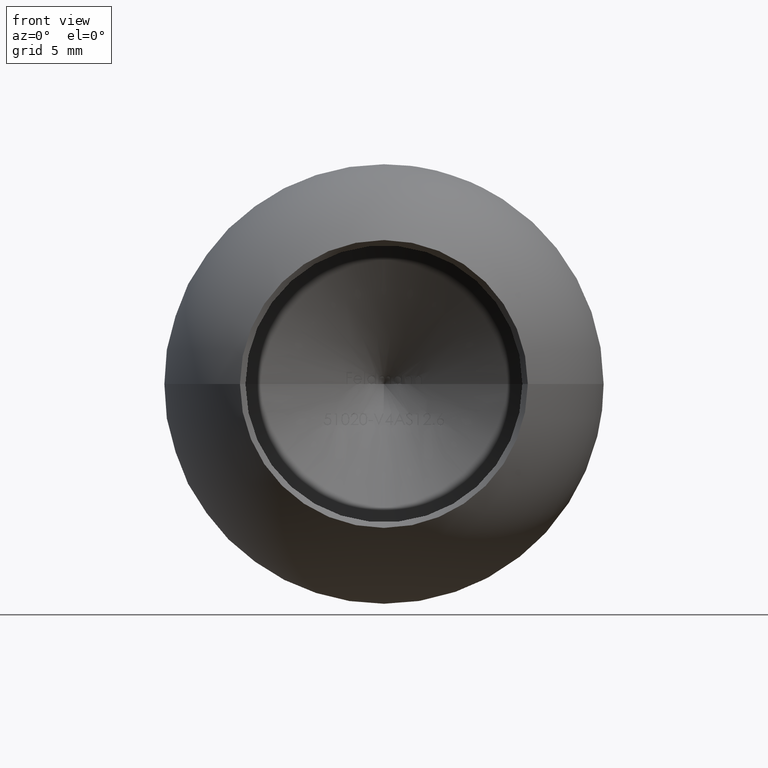
[diagram: clean part render]
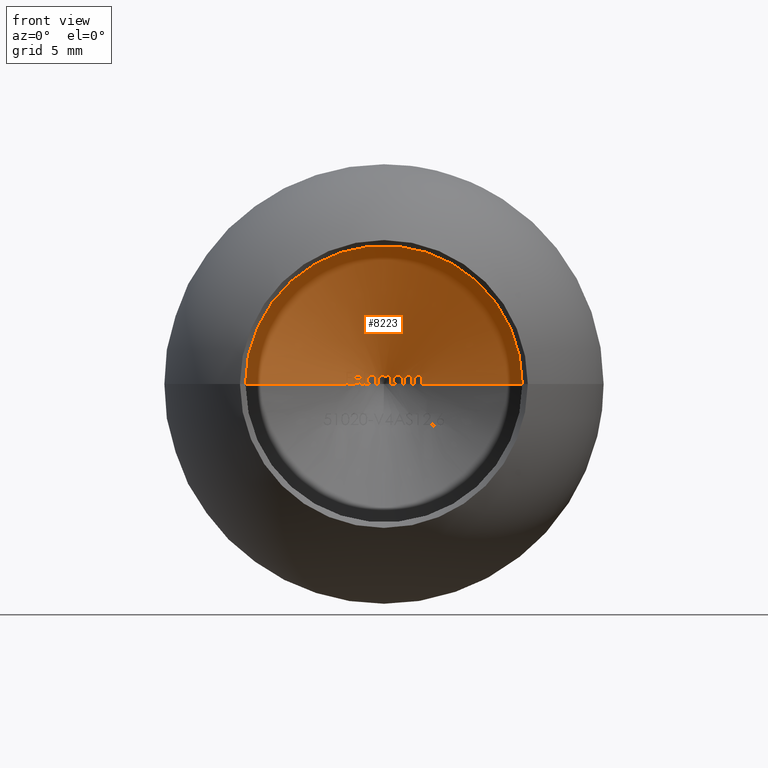
[diagram: same view with one face highlighted and labeled with its STEP entity id]
A machine part, front view. The second image highlights one B-rep face of the part: STEP entity #8223.
In plain terms, the highlighted conical surface has half-angle 59 deg.
Its self-contained STEP definition (entity closure, byte-faithful):
#9 = ORIENTED_EDGE ( 'NONE', *, *, #4106, .T. ) ;
#58 = CARTESIAN_POINT ( 'NONE',  ( 1.216844166198807000, 7.464826229164113000, 0.3708808937965546400 ) ) ;
#71 = ORIENTED_EDGE ( 'NONE', *, *, #260, .T. ) ;
#76 = ORIENTED_EDGE ( 'NONE', *, *, #2387, .T. ) ;
#115 = VECTOR ( 'NONE', #10207, 1000.000000000000100 ) ;
#151 = CARTESIAN_POINT ( 'NONE',  ( 0.5718419609183856800, 7.885535813651456400, -1.718730964543197500E-012 ) ) ;
#153 = CARTESIAN_POINT ( 'NONE',  ( -0.2476228632478644800, 7.953225560064397300, 0.3866987179487192900 ) ) ;
#170 = ORIENTED_EDGE ( 'NONE', *, *, #11654, .F. ) ;
#202 = CARTESIAN_POINT ( 'NONE',  ( -1.042373142122130100, 7.599038729197451000, 0.1147362466499163700 ) ) ;
#223 = CARTESIAN_POINT ( 'NONE',  ( 0.6560317198127458800, 7.769828242271140400, 0.3926894086346133200 ) ) ;
#225 = CARTESIAN_POINT ( 'NONE',  ( 0.6271133814102548600, 7.784293326921698500, 0.3934829059829074700 ) ) ;
#251 = CARTESIAN_POINT ( 'NONE',  ( -1.455208333333334300, 7.334875550827896400, 0.3120726495726510700 ) ) ;
#253 = B_SPLINE_CURVE_WITH_KNOTS ( 'NONE', 3,
 ( #3416, #7705, #4452, #9622 ),
 .UNSPECIFIED., .F., .F.,
 ( 4, 4 ),
 ( 0.0005154003043859490100, 0.0009040597208770841800 ),
 .UNSPECIFIED. ) ;
#260 = EDGE_CURVE ( 'NONE', #2644, #3429, #9180, .T. ) ;
#297 = CARTESIAN_POINT ( 'NONE',  ( -1.035966713408120300, 7.578106117359086900, 0.3173727964743604500 ) ) ;
#303 = CARTESIAN_POINT ( 'NONE',  ( 0.9396100427350430100, 7.618615293544887200, 0.3866987179487194600 ) ) ;
#305 = CARTESIAN_POINT ( 'NONE',  ( -0.1275474555417490900, 7.986939324777755400, 0.3823658772373895700 ) ) ;
#338 = DIRECTION ( 'NONE',  ( 1.000000000000000000, 0.0000000000000000000, 0.0000000000000000000 ) ) ;
#375 = CARTESIAN_POINT ( 'NONE',  ( 0.05249883589302867900, 8.039873827488179400, 0.3106261459517759600 ) ) ;
#379 = ORIENTED_EDGE ( 'NONE', *, *, #3629, .T. ) ;
#383 = CARTESIAN_POINT ( 'NONE',  ( -0.3561698717948731900, 8.015124678615285000, 1.524685264938455400E-015 ) ) ;
#387 = EDGE_CURVE ( 'NONE', #13527, #3349, #253, .T. ) ;
#457 = CARTESIAN_POINT ( 'NONE',  ( 0.4969361190968375500, 7.930709691985027700, 0.03365518790540193700 ) ) ;
#493 = ORIENTED_EDGE ( 'NONE', *, *, #3300, .T. ) ;
#495 = CARTESIAN_POINT ( 'NONE',  ( -0.06678185096153974000, 7.989323781479781100, 0.3934829059829075300 ) ) ;
#516 = CARTESIAN_POINT ( 'NONE',  ( -1.387366452991453600, 7.387550477836355400, 0.1922893295940185900 ) ) ;
#518 = ORIENTED_EDGE ( 'NONE', *, *, #4209, .T. ) ;
#524 = VERTEX_POINT ( 'NONE', #13070 ) ;
#533 = CARTESIAN_POINT ( 'NONE',  ( 0.8310630341880326200, 7.678369173332216100, 0.3866987179487194100 ) ) ;
#571 = CARTESIAN_POINT ( 'NONE',  ( -1.455208333333334300, 7.341140880489551700, 0.2577991452991468300 ) ) ;
#583 = CARTESIAN_POINT ( 'NONE',  ( 0.7835737179487163300, 7.704102071764571000, 0.3866987179487194100 ) ) ;
#586 = CARTESIAN_POINT ( 'NONE',  ( -1.342845219017094500, 7.399481498639970800, 0.3214009081196596000 ) ) ;
#589 = CARTESIAN_POINT ( 'NONE',  ( 0.4681744587720958500, 7.888237951128224300, 0.3204797308144002900 ) ) ;
#602 = B_SPLINE_CURVE_WITH_KNOTS ( 'NONE', 3,
 ( #9393, #3089, #751, #797 ),
 .UNSPECIFIED., .F., .F.,
 ( 4, 4 ),
 ( 0.0004154066790701395300, 0.0004883565292605725500 ),
 .UNSPECIFIED. ) ;
#642 = ORIENTED_EDGE ( 'NONE', *, *, #11500, .T. ) ;
#694 = EDGE_CURVE ( 'NONE', #1862, #989, #12612, .T. ) ;
#734 = EDGE_CURVE ( 'NONE', #13157, #2379, #4541, .T. ) ;
#749 = CARTESIAN_POINT ( 'NONE',  ( 1.434855769230766900, 7.346201699852599600, 0.3169487847222237100 ) ) ;
#751 = CARTESIAN_POINT ( 'NONE',  ( 0.7835737179487163300, 7.710418021273158100, 0.3629465405111126400 ) ) ;
#754 = EDGE_CURVE ( 'NONE', #11476, #1791, #2105, .T. ) ;
#769 = EDGE_CURVE ( 'NONE', #2540, #4147, #12457, .T. ) ;
#796 = FACE_OUTER_BOUND ( 'NONE', #9254, .T. ) ;
#797 = CARTESIAN_POINT ( 'NONE',  ( 0.7835737179487163300, 7.704102071764571000, 0.3866987179487194100 ) ) ;
#827 = ORIENTED_EDGE ( 'NONE', *, *, #9234, .T. ) ;
#837 = CARTESIAN_POINT ( 'NONE',  ( -1.247535108924801200, 7.444077490833109300, 0.3886972820191095200 ) ) ;
#863 = LINE ( 'NONE', #9230, #9066 ) ;
#904 = CARTESIAN_POINT ( 'NONE',  ( 1.134231436965812400, 7.507772552815385600, 0.3934829059829074700 ) ) ;
#939 = CARTESIAN_POINT ( 'NONE',  ( -1.665518162393163400, 7.210973065091733000, 0.3120726495726510700 ) ) ;
#979 = CARTESIAN_POINT ( 'NONE',  ( 0.3288290285857596300, 7.981358166379008500, 0.2513440907403848300 ) ) ;
#989 = VERTEX_POINT ( 'NONE', #153 ) ;
#1033 = VERTEX_POINT ( 'NONE', #9729 ) ;
#1105 = CARTESIAN_POINT ( 'NONE',  ( 0.08779943702463737000, 8.013413367573168200, 0.3485925733421040800 ) ) ;
#1120 = CARTESIAN_POINT ( 'NONE',  ( 1.278819444444444700, 7.451632745797476300, 0.1974834735576938000 ) ) ;
#1125 = CARTESIAN_POINT ( 'NONE',  ( -0.5601195245726509100, 7.817834190411950600, 0.3934829059829074700 ) ) ;
#1149 = B_SPLINE_CURVE_WITH_KNOTS ( 'NONE', 3,
 ( #7819, #10987, #4704, #12039 ),
 .UNSPECIFIED., .F., .F.,
 ( 4, 4 ),
 ( 0.0006845624857008325200, 0.0007345577696191895000 ),
 .UNSPECIFIED. ) ;
#1208 = EDGE_CURVE ( 'NONE', #12782, #2379, #8569, .T. ) ;
#1223 = CARTESIAN_POINT ( 'NONE',  ( -1.647123853676761400, 7.227392441288879300, 0.2577991452991468300 ) ) ;
#1298 = CARTESIAN_POINT ( 'NONE',  ( -1.014236111111111600, 7.616765933389189900, 0.09996077056624083600 ) ) ;
#1349 = CARTESIAN_POINT ( 'NONE',  ( -0.8581997863247876600, 7.619010071886354000, 0.5427350427350441400 ) ) ;
#1351 = CARTESIAN_POINT ( 'NONE',  ( -1.022583629315689800, 7.589010000214752700, 0.2991046988335261400 ) ) ;
#1362 = CARTESIAN_POINT ( 'NONE',  ( -0.1402505534701024300, 7.987557549054738400, 0.3768568281037179000 ) ) ;
#1374 = ORIENTED_EDGE ( 'NONE', *, *, #11553, .T. ) ;
#1384 = CARTESIAN_POINT ( 'NONE',  ( -0.1927462018438461700, 7.999811829124020300, 0.3296127375486474500 ) ) ;
#1388 = CARTESIAN_POINT ( 'NONE',  ( -0.06678185096153974000, 7.989323781479781100, 0.3934829059829075300 ) ) ;
#1398 = CARTESIAN_POINT ( 'NONE',  ( -1.011582755905474900, 7.598741157313495100, 0.2789898398214014100 ) ) ;
#1404 = CARTESIAN_POINT ( 'NONE',  ( -0.1210814108394004800, 7.986728576508244100, 0.3848925274108559400 ) ) ;
#1410 = CARTESIAN_POINT ( 'NONE',  ( -1.383794421931995800, 7.393086150450828100, 0.1468272505587849300 ) ) ;
#1435 = ORIENTED_EDGE ( 'NONE', *, *, #9891, .F. ) ;
#1461 = CARTESIAN_POINT ( 'NONE',  ( 0.8310630341880325100, 7.729780079087778000, 1.524685264938455200E-015 ) ) ;
#1515 = CARTESIAN_POINT ( 'NONE',  ( 0.4246267918715369000, 7.954228590200966800, 0.1716231324943733300 ) ) ;
#1548 = ORIENTED_EDGE ( 'NONE', *, *, #12727, .T. ) ;
#1550 = CARTESIAN_POINT ( 'NONE',  ( -1.161081443561827300, 7.522856678506413700, 0.1831730769230784100 ) ) ;
#1553 = B_SPLINE_CURVE_WITH_KNOTS ( 'NONE', 3,
 ( #11350, #5145, #7189, #13360 ),
 .UNSPECIFIED., .F., .F.,
 ( 4, 4 ),
 ( 0.001152871975454297000, 0.001206201899544857500 ),
 .UNSPECIFIED. ) ;
#1582 = CARTESIAN_POINT ( 'NONE',  ( -1.386734801842284500, 7.385993272257578300, 0.2157239969728522200 ) ) ;
#1592 = CARTESIAN_POINT ( 'NONE',  ( -0.5601195245726509100, 7.817834190411950600, 0.3934829059829074700 ) ) ;
#1606 = VERTEX_POINT ( 'NONE', #9097 ) ;
#1617 = CARTESIAN_POINT ( 'NONE',  ( -1.455208333333334300, 7.334875550827896400, 0.3120726495726510700 ) ) ;
#1649 = CARTESIAN_POINT ( 'NONE',  ( -1.455208333333334300, 7.309373734124890600, 0.4748931623931638700 ) ) ;
#1653 = CARTESIAN_POINT ( 'NONE',  ( 0.5743681984322198700, 7.812360943762302100, 0.3889075040730030600 ) ) ;
#1669 = CARTESIAN_POINT ( 'NONE',  ( -0.3561698717948731900, 7.923438441561377700, 0.3700824176553206300 ) ) ;
#1713 = CARTESIAN_POINT ( 'NONE',  ( -1.316873170836178100, 7.435539007386368300, 0.1019429019742905300 ) ) ;
#1727 = CARTESIAN_POINT ( 'NONE',  ( -0.9056891025641039500, 7.684940213447738700, 0.1850533202026535500 ) ) ;
#1731 = CARTESIAN_POINT ( 'NONE',  ( -1.627233092318847800, 7.201105738648506900, 0.5291666666666681200 ) ) ;
#1761 = LINE ( 'NONE', #2069, #9621 ) ;
#1778 = ORIENTED_EDGE ( 'NONE', *, *, #8563, .T. ) ;
#1791 = VERTEX_POINT ( 'NONE', #4186 ) ;
#1821 = CARTESIAN_POINT ( 'NONE',  ( -2.889777570755572000E-018, 8.229133128260919200, 0.0000000000000000000 ) ) ;
#1823 = VERTEX_POINT ( 'NONE', #9471 ) ;
#1824 = EDGE_CURVE ( 'NONE', #10151, #10084, #4722, .T. ) ;
#1862 = VERTEX_POINT ( 'NONE', #8891 ) ;
#1872 = CARTESIAN_POINT ( 'NONE',  ( -0.7632211538461551900, 7.755899966077015200, 0.1944093883547023700 ) ) ;
#1891 = CARTESIAN_POINT ( 'NONE',  ( -1.219391340500215500, 7.459413479006004300, 0.3926934351310476000 ) ) ;
#1940 = B_SPLINE_CURVE_WITH_KNOTS ( 'NONE', 3,
 ( #9701, #5697, #9666, #6752, #3412, #1410, #13015, #3362 ),
 .UNSPECIFIED., .F., .F.,
 ( 4, 2, 2, 4 ),
 ( 6.608354809621753800E-005, 0.0002001519546335687600, 0.0002671861579022441600, 0.0003342203611709196000 ),
 .UNSPECIFIED. ) ;
#1944 = ORIENTED_EDGE ( 'NONE', *, *, #2543, .T. ) ;
#1959 = CARTESIAN_POINT ( 'NONE',  ( 0.3290331196581183200, 8.016496898014496600, 0.1421242210431101200 ) ) ;
#2020 = CARTESIAN_POINT ( 'NONE',  ( -1.208933315630878400, 7.502316233483516500, 0.04094370510102062600 ) ) ;
#2023 = CARTESIAN_POINT ( 'NONE',  ( -1.323150783410401900, 7.407689189763764200, 0.3450018988909706000 ) ) ;
#2062 = CARTESIAN_POINT ( 'NONE',  ( 1.581987847222220000, 7.249617093780490700, 0.3934829059829074700 ) ) ;
#2069 = CARTESIAN_POINT ( 'NONE',  ( -2.889777570755572000E-018, 8.229133128260919200, 0.0000000000000000000 ) ) ;
#2075 = CARTESIAN_POINT ( 'NONE',  ( 0.3282098184729225800, 7.965285916842966600, 0.2946327035781492500 ) ) ;
#2093 = CARTESIAN_POINT ( 'NONE',  ( -0.7624552855048849500, 7.752313950349199300, 0.2215941953324586700 ) ) ;
#2105 = B_SPLINE_CURVE_WITH_KNOTS ( 'NONE', 3,
 ( #297, #1351, #1398, #8698, #4571, #2406 ),
 .UNSPECIFIED., .F., .F.,
 ( 4, 2, 4 ),
 ( 0.0000000000000000000, 7.452932963559032600E-005, 0.0001490586592711806500 ),
 .UNSPECIFIED. ) ;
#2107 = DIRECTION ( 'NONE',  ( 0.8571673007021137800, -0.5150380749100518200, 0.0000000000000000000 ) ) ;
#2121 = CARTESIAN_POINT ( 'NONE',  ( 0.3290331196581183200, 7.994768954000306800, 0.2094618055555570500 ) ) ;
#2137 = CARTESIAN_POINT ( 'NONE',  ( -0.6096454098510557500, 7.794537069933625200, 0.3897251748211869600 ) ) ;
#2151 = CARTESIAN_POINT ( 'NONE',  ( 1.434855769230766900, 7.336223725318034500, 0.3866987179487194100 ) ) ;
#2175 = CARTESIAN_POINT ( 'NONE',  ( -0.9056891025641039500, 7.594710216959899900, 0.5427350427350440300 ) ) ;
#2176 = CARTESIAN_POINT ( 'NONE',  ( 1.726575854700852300, 7.191701691407332400, 1.524685264938455400E-015 ) ) ;
#2199 = VERTEX_POINT ( 'NONE', #2151 ) ;
#2231 = CARTESIAN_POINT ( 'NONE',  ( 0.3290331196581183200, 7.994768954000306800, 0.2094618055555570500 ) ) ;
#2237 = CARTESIAN_POINT ( 'NONE',  ( -0.2476228632478644800, 7.984184098187361300, 0.3255166933432774900 ) ) ;
#2282 = CARTESIAN_POINT ( 'NONE',  ( -0.2476228632478645300, 8.062188936243574100, 0.1355300878755385500 ) ) ;
#2308 = ORIENTED_EDGE ( 'NONE', *, *, #734, .T. ) ;
#2312 = CARTESIAN_POINT ( 'NONE',  ( -1.056425280448718400, 7.590142072685111400, 0.1221153846153861200 ) ) ;
#2328 = CARTESIAN_POINT ( 'NONE',  ( 0.6849315715523679500, 7.756183652356367200, 0.3886134361682451700 ) ) ;
#2379 = VERTEX_POINT ( 'NONE', #10214 ) ;
#2387 = EDGE_CURVE ( 'NONE', #7943, #4869, #10254, .T. ) ;
#2395 = CARTESIAN_POINT ( 'NONE',  ( -1.014236111111111600, 7.616765933389189900, 0.09996077056624083600 ) ) ;
#2406 = CARTESIAN_POINT ( 'NONE',  ( -0.9938835470085475300, 7.621890151614053400, 0.1831730769230784100 ) ) ;
#2415 = CARTESIAN_POINT ( 'NONE',  ( 1.403200868361991000, 7.354578381430926900, 0.3866987179487194100 ) ) ;
#2443 = CARTESIAN_POINT ( 'NONE',  ( -0.1852163995978125300, 7.996791091847447900, 0.3396441387977307000 ) ) ;
#2445 = CARTESIAN_POINT ( 'NONE',  ( -0.006280716957641864700, 8.000833734106553400, 0.3801676474007121800 ) ) ;
#2447 = ORIENTED_EDGE ( 'NONE', *, *, #5319, .T. ) ;
#2456 = CARTESIAN_POINT ( 'NONE',  ( -0.6153909450648276100, 7.859368944052650200, -1.685595141514480200E-012 ) ) ;
#2460 = CARTESIAN_POINT ( 'NONE',  ( -1.665518162393163400, 7.216471520645448800, 0.2577991452991468300 ) ) ;
#2462 = CARTESIAN_POINT ( 'NONE',  ( -1.105378319067043600, 7.555917603245228900, 0.1831730769230784100 ) ) ;
#2475 = B_SPLINE_CURVE_WITH_KNOTS ( 'NONE', 3,
 ( #583, #11999, #6840, #533 ),
 .UNSPECIFIED., .F., .F.,
 ( 4, 4 ),
 ( 0.0004545048092010370700, 0.0005084874602855962700 ),
 .UNSPECIFIED. ) ;
#2530 = VERTEX_POINT ( 'NONE', #2710 ) ;
#2540 = VERTEX_POINT ( 'NONE', #12404 ) ;
#2543 = EDGE_CURVE ( 'NONE', #1823, #13288, #10496, .T. ) ;
#2547 = B_SPLINE_CURVE_WITH_KNOTS ( 'NONE', 3,
 ( #8585, #3335, #10743, #9722 ),
 .UNSPECIFIED., .F., .F.,
 ( 4, 4 ),
 ( 0.0005364241826316981500, 0.0005907792436031434500 ),
 .UNSPECIFIED. ) ;
#2573 = CARTESIAN_POINT ( 'NONE',  ( -1.171343290367452300, 7.524883764975332800, 0.04122937674194416400 ) ) ;
#2644 = VERTEX_POINT ( 'NONE', #7671 ) ;
#2647 = CARTESIAN_POINT ( 'NONE',  ( 0.4299054499318520900, 7.930123422062855800, 0.2510754663132676600 ) ) ;
#2696 = EDGE_CURVE ( 'NONE', #12146, #524, #7481, .T. ) ;
#2710 = CARTESIAN_POINT ( 'NONE',  ( -0.06678185096153974000, 7.989323781479781100, 0.3934829059829075300 ) ) ;
#2727 = CARTESIAN_POINT ( 'NONE',  ( -1.541323041725254800, 7.250112288964492900, 0.5291666666666681200 ) ) ;
#2738 = CARTESIAN_POINT ( 'NONE',  ( 1.726575854700852300, 7.184937652413706700, 0.1974834735576938000 ) ) ;
#2745 = CARTESIAN_POINT ( 'NONE',  ( 0.9870993589743593000, 7.606199252114268300, 0.3169487847222237100 ) ) ;
#2769 = CARTESIAN_POINT ( 'NONE',  ( -0.9056891025641039500, 7.684940213447738700, 1.524685264938455200E-015 ) ) ;
#2798 = CARTESIAN_POINT ( 'NONE',  ( -1.244739828179888900, 7.480693823135190700, 0.04667709270720311200 ) ) ;
#2812 = CARTESIAN_POINT ( 'NONE',  ( -0.9056891025641039500, 7.648756255492746600, 0.3677474004114063600 ) ) ;
#2836 = CARTESIAN_POINT ( 'NONE',  ( 1.278819444444444700, 7.457632940401802000, 0.1320518482520009200 ) ) ;
#2873 = VERTEX_POINT ( 'NONE', #7265 ) ;
#2912 = CARTESIAN_POINT ( 'NONE',  ( 0.3290331196581183200, 8.031430084302581200, 0.07117610087406223100 ) ) ;
#2930 = B_SPLINE_CURVE_WITH_KNOTS ( 'NONE', 3,
 ( #8565, #5457, #6327, #12795 ),
 .UNSPECIFIED., .F., .F.,
 ( 4, 4 ),
 ( 0.001311551210976973900, 0.001381203793247884200 ),
 .UNSPECIFIED. ) ;
#2987 = VERTEX_POINT ( 'NONE', #8800 ) ;
#3002 = ORIENTED_EDGE ( 'NONE', *, *, #694, .T. ) ;
#3010 = CARTESIAN_POINT ( 'NONE',  ( 1.664271747610633200, 7.204614942439349100, 0.3710756617157945400 ) ) ;
#3012 = CARTESIAN_POINT ( 'NONE',  ( -2.889777570755572000E-018, 8.229133128260919200, 0.0000000000000000000 ) ) ;
#3052 = CARTESIAN_POINT ( 'NONE',  ( 1.717918690679691300, 7.181965258523856500, 0.2943356654103221300 ) ) ;
#3053 = VERTEX_POINT ( 'NONE', #12886 ) ;
#3089 = CARTESIAN_POINT ( 'NONE',  ( 0.7835737179487163300, 7.716302012897487300, 0.3390526112797636000 ) ) ;
#3096 = EDGE_CURVE ( 'NONE', #3053, #7555, #6946, .T. ) ;
#3103 = CARTESIAN_POINT ( 'NONE',  ( 0.07017800241384826400, 8.029343517321709800, 0.3251411267087948000 ) ) ;
#3110 = ORIENTED_EDGE ( 'NONE', *, *, #4822, .T. ) ;
#3133 = EDGE_CURVE ( 'NONE', #12015, #7901, #3945, .T. ) ;
#3138 = CARTESIAN_POINT ( 'NONE',  ( 1.682707935524439200, 7.195702775280625300, 0.3564608434965976200 ) ) ;
#3147 = B_SPLINE_CURVE_WITH_KNOTS ( 'NONE', 3,
 ( #3875, #1959, #2912, #6132 ),
 .UNSPECIFIED., .F., .F.,
 ( 4, 4 ),
 ( 0.001321141104646380200, 0.001534033987952398200 ),
 .UNSPECIFIED. ) ;
#3148 = ORIENTED_EDGE ( 'NONE', *, *, #13112, .T. ) ;
#3161 = CARTESIAN_POINT ( 'NONE',  ( 1.278748215002681000, 7.449457787258910300, 0.2216624680569213300 ) ) ;
#3165 = CARTESIAN_POINT ( 'NONE',  ( -0.7189649266904842900, 7.756322494482654800, 0.3207850584851982800 ) ) ;
#3168 = ORIENTED_EDGE ( 'NONE', *, *, #4856, .T. ) ;
#3194 = DIRECTION ( 'NONE',  ( -0.8571673007021137800, -0.5150380749100518200, 1.049727191138620400E-016 ) ) ;
#3196 = CARTESIAN_POINT ( 'NONE',  ( 0.05628756009615258600, 8.045673851104732300, 0.3000943175747878300 ) ) ;
#3222 = CARTESIAN_POINT ( 'NONE',  ( -0.2476228632478644200, 8.013854022173106300, 0.2637047526550465600 ) ) ;
#3230 = CARTESIAN_POINT ( 'NONE',  ( 0.7638143519097387900, 7.726997631675128100, 0.3404776028070316000 ) ) ;
#3239 = EDGE_CURVE ( 'NONE', #2873, #6304, #3339, .T. ) ;
#3263 = CARTESIAN_POINT ( 'NONE',  ( -0.2476228632478644800, 7.953225560064397300, 0.3866987179487192900 ) ) ;
#3300 = EDGE_CURVE ( 'NONE', #2199, #11492, #2930, .T. ) ;
#3303 = CARTESIAN_POINT ( 'NONE',  ( 0.7835737179487163300, 7.704102071764571000, 0.3866987179487194100 ) ) ;
#3313 = EDGE_CURVE ( 'NONE', #1862, #5131, #8219, .T. ) ;
#3317 = CARTESIAN_POINT ( 'NONE',  ( -1.191685029380342500, 7.475072919171252800, 0.3934829059829074700 ) ) ;
#3335 = CARTESIAN_POINT ( 'NONE',  ( 0.9554523473766666200, 7.609812609037727600, 0.3866987179487194100 ) ) ;
#3338 = CARTESIAN_POINT ( 'NONE',  ( -0.1674813876457003600, 7.991694918443855900, 0.3579710547640181900 ) ) ;
#3339 = B_SPLINE_CURVE_WITH_KNOTS ( 'NONE', 3,
 ( #12349, #8039, #4967, #12307, #7998, #1713, #5926, #9187, #7091, #7007, #9102, #2798, #13353, #5101, #2020, #4403 ),
 .UNSPECIFIED., .F., .F.,
 ( 4, 3, 3, 3, 3, 4 ),
 ( 0.0000000000000000000, 5.200546313378142800E-005, 0.0001044816825350108400, 0.0001518414543448475500, 0.0002073250983755121200, 0.0002424756323301351100 ),
 .UNSPECIFIED. ) ;
#3349 = VERTEX_POINT ( 'NONE', #1461 ) ;
#3362 = CARTESIAN_POINT ( 'NONE',  ( -1.387366452991453600, 7.387550477836355400, 0.1922893295940185900 ) ) ;
#3368 = AXIS2_PLACEMENT_3D ( 'NONE', #8467, #12685, #6406 ) ;
#3372 = EDGE_CURVE ( 'NONE', #12782, #2987, #1940, .T. ) ;
#3412 = CARTESIAN_POINT ( 'NONE',  ( -1.369989613093104600, 7.403633519589686100, 0.1050364290935730000 ) ) ;
#3416 = CARTESIAN_POINT ( 'NONE',  ( 0.8310630341880326200, 7.678369173332216100, 0.3866987179487194100 ) ) ;
#3429 = VERTEX_POINT ( 'NONE', #8929 ) ;
#3478 = CARTESIAN_POINT ( 'NONE',  ( -0.4036591880341894900, 7.893797513475041300, 0.3903659621954276300 ) ) ;
#3484 = B_SPLINE_CURVE_WITH_KNOTS ( 'NONE', 3,
 ( #13179, #5924, #1669, #5838, #13264, #12026 ),
 .UNSPECIFIED., .F., .F.,
 ( 4, 2, 4 ),
 ( 0.001197412939383811100, 0.001484505839886299700, 0.001771598740388788400 ),
 .UNSPECIFIED. ) ;
#3504 = CARTESIAN_POINT ( 'NONE',  ( -1.014236111111111600, 7.616765933389189900, 0.09996077056624083600 ) ) ;
#3523 = ORIENTED_EDGE ( 'NONE', *, *, #3372, .T. ) ;
#3528 = CARTESIAN_POINT ( 'NONE',  ( -1.455208333333334300, 7.339245406926980100, 0.2758832890618085300 ) ) ;
#3534 = CARTESIAN_POINT ( 'NONE',  ( -1.665518162393163400, 7.228388854203729800, 0.08577881180490173900 ) ) ;
#3574 = CARTESIAN_POINT ( 'NONE',  ( -1.144205029093450200, 7.541098231872012100, 0.04702319559875438300 ) ) ;
#3593 = CARTESIAN_POINT ( 'NONE',  ( -0.1464960603632491400, 7.987858117846586800, 0.3738723624465826700 ) ) ;
#3604 = CARTESIAN_POINT ( 'NONE',  ( -0.9056891025641039500, 7.684940213447738700, 1.524685264938455200E-015 ) ) ;
#3612 = CARTESIAN_POINT ( 'NONE',  ( 1.726575854700852300, 7.191701691407334200, 0.06571578956131617100 ) ) ;
#3615 = CARTESIAN_POINT ( 'NONE',  ( -1.056425280448718400, 7.590142072685111400, 0.1221153846153861200 ) ) ;
#3621 = VERTEX_POINT ( 'NONE', #12895 ) ;
#3629 = EDGE_CURVE ( 'NONE', #13288, #11563, #8658, .T. ) ;
#3661 = VERTEX_POINT ( 'NONE', #4350 ) ;
#3676 = VERTEX_POINT ( 'NONE', #4399 ) ;
#3677 = VERTEX_POINT ( 'NONE', #3317 ) ;
#3680 = VERTEX_POINT ( 'NONE', #225 ) ;
#3688 = CARTESIAN_POINT ( 'NONE',  ( 0.4520611773437092600, 7.903395090113035900, 0.2995832499472564400 ) ) ;
#3705 = ORIENTED_EDGE ( 'NONE', *, *, #9655, .T. ) ;
#3732 = CARTESIAN_POINT ( 'NONE',  ( 1.387366452991450700, 7.395519262498409900, 1.524685264938455400E-015 ) ) ;
#3747 = VERTEX_POINT ( 'NONE', #2456 ) ;
#3822 = EDGE_CURVE ( 'NONE', #3747, #8487, #7499, .T. ) ;
#3835 = CARTESIAN_POINT ( 'NONE',  ( 0.9396100427350430100, 7.647482079322318600, 0.2604646520885735600 ) ) ;
#3855 = EDGE_CURVE ( 'NONE', #1606, #7290, #602, .T. ) ;
#3875 = CARTESIAN_POINT ( 'NONE',  ( 0.3290331196581183200, 7.994768954000306800, 0.2094618055555570500 ) ) ;
#3921 = CARTESIAN_POINT ( 'NONE',  ( 1.474668439244039000, 7.316876184046080300, 0.3612204724755956900 ) ) ;
#3945 = B_SPLINE_CURVE_WITH_KNOTS ( 'NONE', 3,
 ( #5882, #6761, #457, #4687, #9996, #13212, #1515, #13171 ),
 .UNSPECIFIED., .F., .F.,
 ( 4, 2, 2, 4 ),
 ( 6.302875572045086500E-005, 0.0002006563166224377800, 0.0002694700970734312200, 0.0003382838775244247500 ),
 .UNSPECIFIED. ) ;
#3957 = ORIENTED_EDGE ( 'NONE', *, *, #6675, .T. ) ;
#3977 = VERTEX_POINT ( 'NONE', #11125 ) ;
#4012 = CARTESIAN_POINT ( 'NONE',  ( 1.525397585370738200, 7.283503275756737900, 0.3873334647179052000 ) ) ;
#4065 = CARTESIAN_POINT ( 'NONE',  ( 1.603071530940848300, 7.237429638254954300, 0.3927497666173401800 ) ) ;
#4071 = CARTESIAN_POINT ( 'NONE',  ( -1.191685029380342500, 7.475072919171252800, 0.3934829059829074700 ) ) ;
#4076 = CARTESIAN_POINT ( 'NONE',  ( 0.2195271746538752500, 7.959069925542917400, 0.3926857945464082300 ) ) ;
#4099 = VECTOR ( 'NONE', #4583, 1000.000000000000100 ) ;
#4106 = EDGE_CURVE ( 'NONE', #3677, #11476, #8093, .T. ) ;
#4147 = VERTEX_POINT ( 'NONE', #9368 ) ;
#4171 = CARTESIAN_POINT ( 'NONE',  ( -1.665518162393163400, 7.197409377788473800, 0.4208371314381104700 ) ) ;
#4186 = CARTESIAN_POINT ( 'NONE',  ( -0.9938835470085475300, 7.621890151614053400, 0.1831730769230784100 ) ) ;
#4209 = EDGE_CURVE ( 'NONE', #3429, #7206, #12791, .T. ) ;
#4226 = B_SPLINE_CURVE_WITH_KNOTS ( 'NONE', 3,
 ( #11632, #7552, #8410, #12682 ),
 .UNSPECIFIED., .F., .F.,
 ( 4, 4 ),
 ( 0.0004804397675657183300, 0.0005297900069922723600 ),
 .UNSPECIFIED. ) ;
#4247 = CARTESIAN_POINT ( 'NONE',  ( -1.249353555073598400, 7.478445777775117000, 2.604048583397386500E-012 ) ) ;
#4257 = CARTESIAN_POINT ( 'NONE',  ( -2.889777570755572000E-018, 8.229133128260919200, 0.0000000000000000000 ) ) ;
#4258 = CARTESIAN_POINT ( 'NONE',  ( -2.889777570755572000E-018, 8.229133128260919200, 0.0000000000000000000 ) ) ;
#4329 = B_SPLINE_CURVE_WITH_KNOTS ( 'NONE', 3,
 ( #4645, #11980, #3612, #8926 ),
 .UNSPECIFIED., .F., .F.,
 ( 4, 4 ),
 ( 0.001119202016704677700, 0.001314319307520508000 ),
 .UNSPECIFIED. ) ;
#4347 = CARTESIAN_POINT ( 'NONE',  ( -2.889777570755572000E-018, 8.229133128260919200, 0.0000000000000000000 ) ) ;
#4350 = CARTESIAN_POINT ( 'NONE',  ( -0.3561698717948734200, 7.839074006626104200, 0.5427350427350441400 ) ) ;
#4384 = CARTESIAN_POINT ( 'NONE',  ( -1.028440401976247200, 7.609755696542947600, 0.07479003011277808600 ) ) ;
#4399 = CARTESIAN_POINT ( 'NONE',  ( 1.581987847222220000, 7.249617093780490700, 0.3934829059829074700 ) ) ;
#4403 = CARTESIAN_POINT ( 'NONE',  ( -1.198787226228633000, 7.508413972367901800, 0.04070512820512972600 ) ) ;
#4423 = CARTESIAN_POINT ( 'NONE',  ( -0.1519536589145240000, 7.988758045412190300, 0.3701252838174331500 ) ) ;
#4432 = CARTESIAN_POINT ( 'NONE',  ( -0.8581997863247877700, 7.704081177819191800, 0.1857826263928785100 ) ) ;
#4452 = CARTESIAN_POINT ( 'NONE',  ( 0.8310630341880325100, 7.729780079087778000, 0.1297176670240863500 ) ) ;
#4465 = CARTESIAN_POINT ( 'NONE',  ( -0.1574265256352354000, 7.989577622851047800, 0.3663451991440774800 ) ) ;
#4470 = CARTESIAN_POINT ( 'NONE',  ( -1.455208333333334300, 7.309373734124890600, 0.4748931623931638700 ) ) ;
#4472 = CARTESIAN_POINT ( 'NONE',  ( -1.135927483978445000, 7.546599037073394600, -8.257606639873284800E-013 ) ) ;
#4483 = CARTESIAN_POINT ( 'NONE',  ( -1.525361386273914200, 7.293660427705921400, 0.3120726495726510700 ) ) ;
#4505 = CARTESIAN_POINT ( 'NONE',  ( -0.4974798504800671000, 7.850569760095895700, 0.3866342090348233200 ) ) ;
#4508 = CARTESIAN_POINT ( 'NONE',  ( -1.342845219017094500, 7.399481498639970800, 0.3214009081196596000 ) ) ;
#4511 = CARTESIAN_POINT ( 'NONE',  ( -0.4036591880341894900, 7.922636605351720500, 0.3118606436965827300 ) ) ;
#4541 = B_SPLINE_CURVE_WITH_KNOTS ( 'NONE', 3,
 ( #9881, #10759, #3534, #11859 ),
 .UNSPECIFIED., .F., .F.,
 ( 4, 4 ),
 ( 0.001076867519352737900, 0.001331980009985720100 ),
 .UNSPECIFIED. ) ;
#4558 = CARTESIAN_POINT ( 'NONE',  ( -1.073752915113377300, 7.581575351559229700, 0.09637610866972518000 ) ) ;
#4560 = CARTESIAN_POINT ( 'NONE',  ( -0.02079407405069758400, 7.997189760528725000, 0.3854581128389876200 ) ) ;
#4571 = CARTESIAN_POINT ( 'NONE',  ( -0.9946420004786074000, 7.618719408236978900, 0.2081726088802165800 ) ) ;
#4583 = DIRECTION ( 'NONE',  ( -0.8571673007021137800, -0.5150380749100518200, 1.049727191138620400E-016 ) ) ;
#4632 = ORIENTED_EDGE ( 'NONE', *, *, #9315, .T. ) ;
#4645 = CARTESIAN_POINT ( 'NONE',  ( 1.726575854700852300, 7.184937652413706700, 0.1974834735576938000 ) ) ;
#4687 = CARTESIAN_POINT ( 'NONE',  ( 0.4546817830302651300, 7.951492631401771800, 0.08441678584333009400 ) ) ;
#4704 = CARTESIAN_POINT ( 'NONE',  ( -0.3720604788414910200, 7.833835412983797000, 0.5427350427350441400 ) ) ;
#4711 = CARTESIAN_POINT ( 'NONE',  ( -1.665518162393163400, 7.216471520645448800, 0.2577991452991468300 ) ) ;
#4713 = CARTESIAN_POINT ( 'NONE',  ( -1.713007478632479600, 7.151863266246349000, 0.5291666666673543500 ) ) ;
#4722 = B_SPLINE_CURVE_WITH_KNOTS ( 'NONE', 3,
 ( #1349, #9515, #10569, #4432, #5350, #12681 ),
 .UNSPECIFIED., .F., .F.,
 ( 4, 2, 4 ),
 ( 0.003395552409867306400, 0.003671311068546156600, 0.003947069727225006900 ),
 .UNSPECIFIED. ) ;
#4762 = ORIENTED_EDGE ( 'NONE', *, *, #7201, .T. ) ;
#4771 = CARTESIAN_POINT ( 'NONE',  ( 0.5052355336211181700, 7.857959994380424400, 0.3554560686072432100 ) ) ;
#4821 = CARTESIAN_POINT ( 'NONE',  ( 0.9870993589743593000, 7.592135554761809700, 0.3866987179487194100 ) ) ;
#4822 = EDGE_CURVE ( 'NONE', #1033, #13157, #9635, .T. ) ;
#4835 = CARTESIAN_POINT ( 'NONE',  ( -1.035966713408120300, 7.578106117359086900, 0.3173727964743604500 ) ) ;
#4856 = EDGE_CURVE ( 'NONE', #11890, #12337, #8809, .T. ) ;
#4869 = VERTEX_POINT ( 'NONE', #303 ) ;
#4875 = CARTESIAN_POINT ( 'NONE',  ( 1.278819444444444700, 7.451632745797476300, 0.1974834735576938000 ) ) ;
#4910 = CARTESIAN_POINT ( 'NONE',  ( 0.9870993589743593000, 7.606199252114268300, 0.3169487847222237100 ) ) ;
#4944 = B_SPLINE_CURVE_WITH_KNOTS ( 'NONE', 3,
 ( #2062, #4065, #9319, #3010, #3138, #10352, #3052, #8421, #10485, #9398 ),
 .UNSPECIFIED., .F., .F.,
 ( 4, 2, 2, 2, 4 ),
 ( 0.0000000000000000000, 7.238617317193015900E-005, 0.0001447723463438603200, 0.0002171585195157904800, 0.0002895446926877206400 ),
 .UNSPECIFIED. ) ;
#4967 = CARTESIAN_POINT ( 'NONE',  ( -1.336835441720502600, 7.420994536187897100, 0.1484644909602533500 ) ) ;
#5062 = CARTESIAN_POINT ( 'NONE',  ( -0.2001335470085482700, 7.967507253994315700, 0.3866987179487194100 ) ) ;
#5086 = CARTESIAN_POINT ( 'NONE',  ( 0.8310630341880326200, 7.678369173332216100, 0.3866987179487194100 ) ) ;
#5101 = CARTESIAN_POINT ( 'NONE',  ( -1.219117226891495400, 7.496186776087538000, 0.04165419064811757400 ) ) ;
#5131 = VERTEX_POINT ( 'NONE', #383 ) ;
#5144 = CARTESIAN_POINT ( 'NONE',  ( 0.2414083665372634100, 7.954414313876948300, 0.3888942171950526800 ) ) ;
#5145 = CARTESIAN_POINT ( 'NONE',  ( -0.8898808152440177400, 7.602857871116238900, 0.5427350427350441400 ) ) ;
#5188 = CARTESIAN_POINT ( 'NONE',  ( -1.035966713408120300, 7.578106117359086900, 0.3173727964743604500 ) ) ;
#5197 = CARTESIAN_POINT ( 'NONE',  ( 1.270315914121942900, 7.445852026122667100, 0.2936901107530272000 ) ) ;
#5236 = CIRCLE ( 'NONE', #6033, 6.299999999999999800 ) ;
#5250 = ORIENTED_EDGE ( 'NONE', *, *, #7365, .T. ) ;
#5309 = ORIENTED_EDGE ( 'NONE', *, *, #8010, .T. ) ;
#5319 = EDGE_CURVE ( 'NONE', #8790, #7628, #12499, .T. ) ;
#5346 = CARTESIAN_POINT ( 'NONE',  ( -0.7579895014815099000, 7.750009855608885400, 0.2490537826473108500 ) ) ;
#5350 = CARTESIAN_POINT ( 'NONE',  ( -0.8581997863247876600, 7.713474673400509300, 0.09225349474620377100 ) ) ;
#5436 = B_SPLINE_CURVE_WITH_KNOTS ( 'NONE', 3,
 ( #4875, #2836, #9100, #13266 ),
 .UNSPECIFIED., .F., .F.,
 ( 4, 4 ),
 ( 0.0008179509320228958300, 0.001013369868993848500 ),
 .UNSPECIFIED. ) ;
#5457 = CARTESIAN_POINT ( 'NONE',  ( 1.434855769230766900, 7.339859331725187500, 0.3634465183375484900 ) ) ;
#5480 = VERTEX_POINT ( 'NONE', #6120 ) ;
#5523 = CARTESIAN_POINT ( 'NONE',  ( -0.1464960603632491400, 7.987858117846586800, 0.3738723624465826700 ) ) ;
#5530 = CARTESIAN_POINT ( 'NONE',  ( -1.045332374279296400, 7.600352231111561900, 0.05182582435818856900 ) ) ;
#5535 = ORIENTED_EDGE ( 'NONE', *, *, #11182, .T. ) ;
#5537 = CARTESIAN_POINT ( 'NONE',  ( -1.665518162393163400, 7.188503202428600900, 0.4748931623931638700 ) ) ;
#5538 = ORIENTED_EDGE ( 'NONE', *, *, #9501, .T. ) ;
#5580 = VERTEX_POINT ( 'NONE', #8441 ) ;
#5587 = CARTESIAN_POINT ( 'NONE',  ( -1.583178196075709000, 7.265352727897968600, 0.2577991452991468300 ) ) ;
#5600 = CARTESIAN_POINT ( 'NONE',  ( -0.8581997863247876600, 7.713474673400490600, 1.524685264938455200E-015 ) ) ;
#5616 = B_SPLINE_CURVE_WITH_KNOTS ( 'NONE', 3,
 ( #8707, #6795, #2462, #1550, #11960, #8902, #12004 ),
 .UNSPECIFIED., .F., .F.,
 ( 4, 3, 4 ),
 ( 0.0004679169012656428200, 0.0006622416787613022000, 0.0008702435739028233000 ),
 .UNSPECIFIED. ) ;
#5620 = CARTESIAN_POINT ( 'NONE',  ( -0.4036591880341894900, 7.822717620624650300, 0.5427350427350441400 ) ) ;
#5624 = CARTESIAN_POINT ( 'NONE',  ( -1.595507147876795700, 7.228957709597494800, 0.4748931623931638700 ) ) ;
#5644 = CARTESIAN_POINT ( 'NONE',  ( -0.1339977726762332200, 7.987149560437494200, 0.3798453727161576500 ) ) ;
#5680 = B_SPLINE_CURVE_WITH_KNOTS ( 'NONE', 3,
 ( #9778, #10943, #12046, #11087 ),
 .UNSPECIFIED., .F., .F.,
 ( 4, 4 ),
 ( 0.001597011629263373100, 0.001651779180251736200 ),
 .UNSPECIFIED. ) ;
#5697 = CARTESIAN_POINT ( 'NONE',  ( -1.286778537504764200, 7.455958579664403500, 0.009729627450628122700 ) ) ;
#5703 = EDGE_CURVE ( 'NONE', #3661, #5131, #3484, .T. ) ;
#5715 = CARTESIAN_POINT ( 'NONE',  ( -1.198787226228633000, 7.508413972367901800, 0.04070512820512972600 ) ) ;
#5718 = ORIENTED_EDGE ( 'NONE', *, *, #754, .T. ) ;
#5720 = ORIENTED_EDGE ( 'NONE', *, *, #13000, .T. ) ;
#5738 = CARTESIAN_POINT ( 'NONE',  ( 0.4248278770097052000, 7.941157945102580700, 0.2233780712802908000 ) ) ;
#5753 = CARTESIAN_POINT ( 'NONE',  ( -1.356485598362129100, 7.394072391975716300, 0.3030847161020861500 ) ) ;
#5754 = CARTESIAN_POINT ( 'NONE',  ( 0.05628756009615258600, 8.045673851104732300, 0.3000943175747878300 ) ) ;
#5798 = VECTOR ( 'NONE', #10724, 1000.000000000000100 ) ;
#5838 = CARTESIAN_POINT ( 'NONE',  ( -0.3561698717948731900, 7.990173199593679800, 0.1904863037396190600 ) ) ;
#5849 = EDGE_CURVE ( 'NONE', #3676, #10638, #4944, .T. ) ;
#5882 = CARTESIAN_POINT ( 'NONE',  ( 0.5718419609183856800, 7.885535813651456400, -1.718730964543197500E-012 ) ) ;
#5924 = CARTESIAN_POINT ( 'NONE',  ( -0.3561698717948731900, 7.882059213055796900, 0.4571665051210925300 ) ) ;
#5926 = CARTESIAN_POINT ( 'NONE',  ( -1.306457583537951700, 7.442289117166833300, 0.08962736623735925700 ) ) ;
#5958 = CARTESIAN_POINT ( 'NONE',  ( 0.9396100427350430100, 7.664558456338632200, 1.524685264938455200E-015 ) ) ;
#5964 = CARTESIAN_POINT ( 'NONE',  ( 1.026426794114610600, 7.575396783448402600, 0.3608424898012031500 ) ) ;
#6000 = ORIENTED_EDGE ( 'NONE', *, *, #6860, .T. ) ;
#6003 = CARTESIAN_POINT ( 'NONE',  ( 1.105319173278444200, 7.524369107209239800, 0.3925490969725740600 ) ) ;
#6025 = B_SPLINE_CURVE_WITH_KNOTS ( 'NONE', 3,
 ( #1872, #2093, #5346, #7321, #3165, #6351, #9419, #2137, #10376, #1125 ),
 .UNSPECIFIED., .F., .F.,
 ( 4, 2, 2, 2, 4 ),
 ( 0.0000000000000000000, 8.155571166221223400E-005, 0.0001631114233244244700, 0.0002446671349866367300, 0.0003262228466488489400 ),
 .UNSPECIFIED. ) ;
#6033 = AXIS2_PLACEMENT_3D ( 'NONE', #9730, #8507, #338 ) ;
#6041 = EDGE_CURVE ( 'NONE', #10976, #11890, #12843, .T. ) ;
#6088 = B_SPLINE_CURVE_WITH_KNOTS ( 'NONE', 3,
 ( #5715, #2573, #3574, #13033, #4558, #3615 ),
 .UNSPECIFIED., .F., .F.,
 ( 4, 2, 4 ),
 ( 0.0000000000000000000, 9.478947945274096700E-005, 0.0001895789589054819300 ),
 .UNSPECIFIED. ) ;
#6089 = CARTESIAN_POINT ( 'NONE',  ( 1.581987847222220000, 7.249617093780490700, 0.3934829059829074700 ) ) ;
#6111 = CARTESIAN_POINT ( 'NONE',  ( -0.2001335470085482700, 7.979407474817543600, 0.3643981718122179500 ) ) ;
#6120 = CARTESIAN_POINT ( 'NONE',  ( 0.3290331196581183200, 8.031430084302574100, 1.524685264938455200E-015 ) ) ;
#6132 = CARTESIAN_POINT ( 'NONE',  ( 0.3290331196581183200, 8.031430084302574100, 1.524685264938455200E-015 ) ) ;
#6142 = ORIENTED_EDGE ( 'NONE', *, *, #3096, .F. ) ;
#6210 = ORIENTED_EDGE ( 'NONE', *, *, #3133, .T. ) ;
#6238 = ORIENTED_EDGE ( 'NONE', *, *, #13484, .T. ) ;
#6251 = CARTESIAN_POINT ( 'NONE',  ( 1.277971374902707300, 7.447313533883296100, 0.2457841501025720700 ) ) ;
#6283 = DIRECTION ( 'NONE',  ( -0.8571673007021137800, -0.5150380749100518200, 1.049727191138620400E-016 ) ) ;
#6292 = ORIENTED_EDGE ( 'NONE', *, *, #3855, .T. ) ;
#6304 = VERTEX_POINT ( 'NONE', #12935 ) ;
#6327 = CARTESIAN_POINT ( 'NONE',  ( 1.434855769230766900, 7.343188762011254600, 0.3401965159179316500 ) ) ;
#6333 = VECTOR ( 'NONE', #3194, 1000.000000000000100 ) ;
#6348 = B_SPLINE_CURVE_WITH_KNOTS ( 'NONE', 3,
 ( #13539, #9252, #11359, #8194 ),
 .UNSPECIFIED., .F., .F.,
 ( 4, 4 ),
 ( 0.0006633498440519580300, 0.001191660802047526700 ),
 .UNSPECIFIED. ) ;
#6351 = CARTESIAN_POINT ( 'NONE',  ( -0.6799325453821183400, 7.767891596543227800, 0.3571753214605999900 ) ) ;
#6365 = CARTESIAN_POINT ( 'NONE',  ( 0.7835737179487163300, 7.721661873789921400, 0.3151467347756424800 ) ) ;
#6390 = CARTESIAN_POINT ( 'NONE',  ( -0.6548595648391171100, 7.835653804755575700, 0.01033408935832710700 ) ) ;
#6406 = DIRECTION ( 'NONE',  ( 1.000000000000000000, 0.0000000000000000000, 0.0000000000000000000 ) ) ;
#6433 = CARTESIAN_POINT ( 'NONE',  ( -6.299999999999999800, 4.443711228387312100, 7.715274834628325400E-016 ) ) ;
#6441 = VERTEX_POINT ( 'NONE', #10093 ) ;
#6529 = B_SPLINE_CURVE_WITH_KNOTS ( 'NONE', 3,
 ( #4511, #3478, #11889, #5620 ),
 .UNSPECIFIED., .F., .F.,
 ( 4, 4 ),
 ( 0.0002458175524693148800, 0.0004961746075296705000 ),
 .UNSPECIFIED. ) ;
#6537 = CARTESIAN_POINT ( 'NONE',  ( -0.5284715406823504700, 7.833716736703206800, 0.3925497902794604600 ) ) ;
#6547 = CARTESIAN_POINT ( 'NONE',  ( 0.9396100427350430100, 7.664558456338632200, 1.524685264938455200E-015 ) ) ;
#6630 = B_SPLINE_CURVE_WITH_KNOTS ( 'NONE', 3,
 ( #9840, #2415, #12918, #10768 ),
 .UNSPECIFIED., .F., .F.,
 ( 4, 4 ),
 ( 0.0007803824674425020600, 0.0008352642587977265800 ),
 .UNSPECIFIED. ) ;
#6632 = CARTESIAN_POINT ( 'NONE',  ( -0.4225331317246419600, 7.904750572483694200, 0.3361200866071057900 ) ) ;
#6633 = CARTESIAN_POINT ( 'NONE',  ( -0.1721437568219751100, 7.992929520189069800, 0.3534654816710278700 ) ) ;
#6675 = EDGE_CURVE ( 'NONE', #3680, #1606, #9071, .T. ) ;
#6707 = LINE ( 'NONE', #8376, #12586 ) ;
#6751 = CARTESIAN_POINT ( 'NONE',  ( -1.056425280448718400, 7.590142072685111400, 0.1221153846153861200 ) ) ;
#6752 = CARTESIAN_POINT ( 'NONE',  ( -1.359464049011051400, 7.410727619573565400, 0.08558561667988243100 ) ) ;
#6761 = CARTESIAN_POINT ( 'NONE',  ( 0.5334101365652362800, 7.908627983408774000, 0.01006262467085590000 ) ) ;
#6795 = CARTESIAN_POINT ( 'NONE',  ( -1.049650482489954600, 7.588936976803732500, 0.1831730769230784100 ) ) ;
#6822 = ORIENTED_EDGE ( 'NONE', *, *, #1208, .F. ) ;
#6835 = EDGE_CURVE ( 'NONE', #11563, #2530, #11328, .T. ) ;
#6840 = CARTESIAN_POINT ( 'NONE',  ( 0.8152513175794586800, 7.686982976807740900, 0.3866987179487194100 ) ) ;
#6860 = EDGE_CURVE ( 'NONE', #1791, #2873, #5616, .T. ) ;
#6885 = EDGE_CURVE ( 'NONE', #3621, #2199, #6630, .T. ) ;
#6890 = B_SPLINE_CURVE_WITH_KNOTS ( 'NONE', 3,
 ( #4470, #9871, #5624, #8732 ),
 .UNSPECIFIED., .F., .F.,
 ( 4, 4 ),
 ( 0.0007447856800550942500, 0.0009873309764940909000 ),
 .UNSPECIFIED. ) ;
#6927 = CARTESIAN_POINT ( 'NONE',  ( -1.455208333333334300, 7.298739960861312600, 0.5291666666666681200 ) ) ;
#6946 = LINE ( 'NONE', #8765, #12180 ) ;
#6948 = CARTESIAN_POINT ( 'NONE',  ( 1.005612657392079400, 7.591351306617279500, 0.3401211589749970600 ) ) ;
#6961 = CARTESIAN_POINT ( 'NONE',  ( -0.6914595132608619700, 7.813556849463842500, 0.03466187343251499200 ) ) ;
#6970 = VERTEX_POINT ( 'NONE', #586 ) ;
#6995 = VERTEX_POINT ( 'NONE', #1649 ) ;
#7007 = CARTESIAN_POINT ( 'NONE',  ( -1.274064773147429300, 7.462711548202832100, 0.06132297238097952200 ) ) ;
#7044 = EDGE_CURVE ( 'NONE', #7206, #5480, #3147, .T. ) ;
#7091 = CARTESIAN_POINT ( 'NONE',  ( -1.285955296655555000, 7.455358150926811900, 0.06883884860569390600 ) ) ;
#7115 = ORIENTED_EDGE ( 'NONE', *, *, #10144, .T. ) ;
#7125 = EDGE_CURVE ( 'NONE', #8487, #12146, #6025, .T. ) ;
#7142 = CARTESIAN_POINT ( 'NONE',  ( -1.342845219017094500, 7.399481498639970800, 0.3214009081196596000 ) ) ;
#7180 = DIRECTION ( 'NONE',  ( 0.8571673007021137800, -0.5150380749100518200, 0.0000000000000000000 ) ) ;
#7181 = CARTESIAN_POINT ( 'NONE',  ( -1.299886154096278500, 7.417938698713772500, 0.3650941993844509200 ) ) ;
#7189 = CARTESIAN_POINT ( 'NONE',  ( -0.8740519608767434200, 7.610959860351274900, 0.5427350427350441400 ) ) ;
#7201 = EDGE_CURVE ( 'NONE', #12472, #7555, #5236, .T. ) ;
#7206 = VERTEX_POINT ( 'NONE', #2231 ) ;
#7265 = CARTESIAN_POINT ( 'NONE',  ( -1.339877136752137400, 7.416565358234666200, 0.1831730769230784100 ) ) ;
#7266 = CARTESIAN_POINT ( 'NONE',  ( 0.2962337679600826600, 7.953263499345494500, 0.3513793890083775100 ) ) ;
#7278 = ORIENTED_EDGE ( 'NONE', *, *, #10305, .T. ) ;
#7285 = EDGE_CURVE ( 'NONE', #6995, #10976, #6890, .T. ) ;
#7290 = VERTEX_POINT ( 'NONE', #3303 ) ;
#7321 = CARTESIAN_POINT ( 'NONE',  ( -0.7357995296537086500, 7.752247044024732900, 0.2987488803738426200 ) ) ;
#7348 = ORIENTED_EDGE ( 'NONE', *, *, #7125, .T. ) ;
#7350 = CARTESIAN_POINT ( 'NONE',  ( 0.2798642881807397700, 7.951771936355934000, 0.3677408391487088100 ) ) ;
#7365 = EDGE_CURVE ( 'NONE', #10360, #3661, #1149, .T. ) ;
#7367 = B_SPLINE_CURVE_WITH_KNOTS ( 'NONE', 3,
 ( #3732, #13152, #10998, #7830 ),
 .UNSPECIFIED., .F., .F.,
 ( 4, 4 ),
 ( 0.0005668269210383687100, 0.0009524263837788097600 ),
 .UNSPECIFIED. ) ;
#7407 = CARTESIAN_POINT ( 'NONE',  ( 1.155344782319206200, 7.495931700824737500, 0.3927487351983345900 ) ) ;
#7432 = CARTESIAN_POINT ( 'NONE',  ( 1.134231436965812400, 7.507772552815385600, 0.3934829059829074700 ) ) ;
#7465 = CARTESIAN_POINT ( 'NONE',  ( 0.9870993589743593000, 7.606199252114268300, 0.3169487847222237100 ) ) ;
#7480 = CARTESIAN_POINT ( 'NONE',  ( 0.1665018309098096100, 7.973640775004691200, 0.3922337965753892000 ) ) ;
#7481 = B_SPLINE_CURVE_WITH_KNOTS ( 'NONE', 3,
 ( #12812, #6537, #4505, #11845, #6632, #8540 ),
 .UNSPECIFIED., .F., .F.,
 ( 4, 2, 4 ),
 ( 0.0000000000000000000, 0.0001050706478123603900, 0.0002101412956247207800 ),
 .UNSPECIFIED. ) ;
#7499 = B_SPLINE_CURVE_WITH_KNOTS ( 'NONE', 3,
 ( #12670, #6390, #6961, #10808, #8108, #13058, #9752, #12919 ),
 .UNSPECIFIED., .F., .F.,
 ( 4, 2, 2, 4 ),
 ( 6.300518127704717600E-005, 0.0002043452114813032100, 0.0002750152265834312000, 0.0003456852416855593000 ),
 .UNSPECIFIED. ) ;
#7515 = CARTESIAN_POINT ( 'NONE',  ( -1.455208333333334300, 7.341140880489551700, 0.2577991452991468300 ) ) ;
#7552 = CARTESIAN_POINT ( 'NONE',  ( -0.2318840374973234800, 7.958325287165189700, 0.3866987179487194100 ) ) ;
#7555 = VERTEX_POINT ( 'NONE', #6433 ) ;
#7560 = CARTESIAN_POINT ( 'NONE',  ( -1.659386934909211200, 7.220112179113281800, 0.2577991452991468300 ) ) ;
#7614 = ORIENTED_EDGE ( 'NONE', *, *, #6041, .T. ) ;
#7628 = VERTEX_POINT ( 'NONE', #2175 ) ;
#7649 = CARTESIAN_POINT ( 'NONE',  ( -0.1076628242989590000, 7.986848976752060700, 0.3885897239415639900 ) ) ;
#7671 = CARTESIAN_POINT ( 'NONE',  ( 0.05628756009615258600, 8.045673851104732300, 0.3000943175747878300 ) ) ;
#7672 = CARTESIAN_POINT ( 'NONE',  ( -0.1765711993143906400, 7.994237357230208100, 0.3487844694389346000 ) ) ;
#7705 = CARTESIAN_POINT ( 'NONE',  ( 0.8310630341880325100, 7.710246537656389300, 0.2609430113264103500 ) ) ;
#7719 = CARTESIAN_POINT ( 'NONE',  ( -1.383672564581590200, 7.385509529329265600, 0.2392944843563436500 ) ) ;
#7721 = CARTESIAN_POINT ( 'NONE',  ( -0.03522397244553329000, 7.993566741530131000, 0.3907181555876245200 ) ) ;
#7809 = EDGE_CURVE ( 'NONE', #3977, #6441, #5436, .T. ) ;
#7816 = CARTESIAN_POINT ( 'NONE',  ( 0.03691465003644428500, 8.022137874390393700, 0.3425989698512762500 ) ) ;
#7819 = CARTESIAN_POINT ( 'NONE',  ( -0.4036591880341894900, 7.822717620624650300, 0.5427350427350441400 ) ) ;
#7830 = CARTESIAN_POINT ( 'NONE',  ( 1.387366452991450700, 7.363743306549991100, 0.3866987179490150000 ) ) ;
#7863 = CARTESIAN_POINT ( 'NONE',  ( 0.02892610088501217100, 8.016008673873473700, 0.3536798658705480000 ) ) ;
#7866 = ORIENTED_EDGE ( 'NONE', *, *, #769, .T. ) ;
#7901 = VERTEX_POINT ( 'NONE', #10712 ) ;
#7911 = EDGE_CURVE ( 'NONE', #13403, #10244, #10731, .T. ) ;
#7934 = CARTESIAN_POINT ( 'NONE',  ( 0.5269113906325524300, 7.842328309717857800, 0.3698808421072859500 ) ) ;
#7943 = VERTEX_POINT ( 'NONE', #6547 ) ;
#7959 = B_SPLINE_CURVE_WITH_KNOTS ( 'NONE', 3,
 ( #1388, #8729, #7721, #4560, #2445, #8878, #8779, #7863, #7816, #9770, #10840, #375, #5754 ),
 .UNSPECIFIED., .F., .F.,
 ( 4, 3, 3, 3, 4 ),
 ( 2.710505431213761100E-020, 4.734074943008938100E-005, 9.491457183015923900E-005, 0.0001384496987312408000, 0.0001759050593100009400 ),
 .UNSPECIFIED. ) ;
#7967 = ORIENTED_EDGE ( 'NONE', *, *, #9821, .T. ) ;
#7998 = CARTESIAN_POINT ( 'NONE',  ( -1.325523987704849500, 7.429650620619663700, 0.1166909536807550800 ) ) ;
#8010 = EDGE_CURVE ( 'NONE', #12337, #1033, #8285, .T. ) ;
#8023 = CARTESIAN_POINT ( 'NONE',  ( 0.9396100427350430100, 7.664558456338632200, 0.1293917475758228600 ) ) ;
#8031 = B_SPLINE_CURVE_WITH_KNOTS ( 'NONE', 3,
 ( #904, #7407, #8271, #58, #10413, #12537, #5197, #6251, #3161, #1120 ),
 .UNSPECIFIED., .F., .F.,
 ( 4, 2, 2, 2, 4 ),
 ( 0.0000000000000000000, 7.191098164294651600E-005, 0.0001438219632858930300, 0.0002157329449288395500, 0.0002876439265717860600 ),
 .UNSPECIFIED. ) ;
#8039 = CARTESIAN_POINT ( 'NONE',  ( -1.339089859469131600, 7.418435185580205100, 0.1659570519032283500 ) ) ;
#8042 = ORIENTED_EDGE ( 'NONE', *, *, #5849, .T. ) ;
#8093 = B_SPLINE_CURVE_WITH_KNOTS ( 'NONE', 3,
 ( #8221, #11207, #13277, #13316, #12528, #5188 ),
 .UNSPECIFIED., .F., .F.,
 ( 4, 2, 4 ),
 ( 0.0000000000000000000, 0.0001030957192344105400, 0.0002061914384688210800 ),
 .UNSPECIFIED. ) ;
#8105 = ORIENTED_EDGE ( 'NONE', *, *, #5703, .T. ) ;
#8108 = CARTESIAN_POINT ( 'NONE',  ( -0.7445456928866458500, 7.777514641595327100, 0.1047826798471483100 ) ) ;
#8112 = VERTEX_POINT ( 'NONE', #7465 ) ;
#8132 = B_SPLINE_CURVE_WITH_KNOTS ( 'NONE', 3,
 ( #4910, #6948, #5964, #12295, #6003, #13341 ),
 .UNSPECIFIED., .F., .F.,
 ( 4, 2, 4 ),
 ( 2.424349759030540200E-019, 9.862340729945544200E-005, 0.0001972468145989106400 ),
 .UNSPECIFIED. ) ;
#8194 = CARTESIAN_POINT ( 'NONE',  ( -1.713007478632479600, 7.151863266246349000, 0.5291666666673543500 ) ) ;
#8219 = LINE ( 'NONE', #4257, #4099 ) ;
#8221 = CARTESIAN_POINT ( 'NONE',  ( -1.191685029380342500, 7.475072919171252800, 0.3934829059829074700 ) ) ;
#8223 = ADVANCED_FACE ( 'NONE', ( #796 ), #12594, .F. ) ;
#8247 = CARTESIAN_POINT ( 'NONE',  ( 0.9870993589743593000, 7.597214466107389300, 0.3635254012950807100 ) ) ;
#8271 = CARTESIAN_POINT ( 'NONE',  ( 1.176492429003844100, 7.484516459458407500, 0.3896581515268293100 ) ) ;
#8285 = B_SPLINE_CURVE_WITH_KNOTS ( 'NONE', 3,
 ( #251, #9824, #3528, #571 ),
 .UNSPECIFIED., .F., .F.,
 ( 4, 4 ),
 ( 0.001230637035580689100, 0.001284592550238574700 ),
 .UNSPECIFIED. ) ;
#8376 = CARTESIAN_POINT ( 'NONE',  ( -2.889777570755572000E-018, 8.229133128260919200, 0.0000000000000000000 ) ) ;
#8410 = CARTESIAN_POINT ( 'NONE',  ( -0.2160289242955592300, 7.963117324731402200, 0.3866987179487194100 ) ) ;
#8421 = CARTESIAN_POINT ( 'NONE',  ( 1.725720836298180000, 7.181824306359597900, 0.2461369899212584000 ) ) ;
#8430 = ORIENTED_EDGE ( 'NONE', *, *, #6835, .T. ) ;
#8441 = CARTESIAN_POINT ( 'NONE',  ( 1.387366452991450700, 7.395519262498409900, 1.524685264938455400E-015 ) ) ;
#8464 = CARTESIAN_POINT ( 'NONE',  ( -0.2476228632478645300, 8.080346301364432500, 0.06873546452513232300 ) ) ;
#8467 = CARTESIAN_POINT ( 'NONE',  ( -1.634733264437537300E-015, -991.7708668717391400, 0.0000000000000000000 ) ) ;
#8484 = CARTESIAN_POINT ( 'NONE',  ( -0.2001335470085482700, 8.002608578315969700, 0.3194928552350442300 ) ) ;
#8487 = VERTEX_POINT ( 'NONE', #13374 ) ;
#8507 = DIRECTION ( 'NONE',  ( -1.631843486866781500E-018, -1.000000000000000000, -0.0000000000000000000 ) ) ;
#8540 = CARTESIAN_POINT ( 'NONE',  ( -0.4036591880341894900, 7.922636605351720500, 0.3118606436965827300 ) ) ;
#8563 = EDGE_CURVE ( 'NONE', #3053, #2540, #6348, .T. ) ;
#8565 = CARTESIAN_POINT ( 'NONE',  ( 1.434855769230766900, 7.336223725318034500, 0.3866987179487194100 ) ) ;
#8569 = LINE ( 'NONE', #4347, #5798 ) ;
#8585 = CARTESIAN_POINT ( 'NONE',  ( 0.9396100427350430100, 7.618615293544887200, 0.3866987179487194600 ) ) ;
#8657 = LINE ( 'NONE', #1821, #115 ) ;
#8658 = B_SPLINE_CURVE_WITH_KNOTS ( 'NONE', 3,
 ( #11799, #1384, #2443, #7672, #6633, #3338, #10746, #4465, #4423, #5523 ),
 .UNSPECIFIED., .F., .F.,
 ( 4, 3, 3, 4 ),
 ( 0.0000000000000000000, 3.851311768731030500E-005, 5.820392503490924500E-005, 7.820939082748007600E-005 ),
 .UNSPECIFIED. ) ;
#8698 = CARTESIAN_POINT ( 'NONE',  ( -0.9974127522193315700, 7.613822560785671100, 0.2329511510321157800 ) ) ;
#8707 = CARTESIAN_POINT ( 'NONE',  ( -0.9938835470085475300, 7.621890151614053400, 0.1831730769230784100 ) ) ;
#8729 = CARTESIAN_POINT ( 'NONE',  ( -0.05112407260770875800, 7.991212711813314100, 0.3929516778922428300 ) ) ;
#8732 = CARTESIAN_POINT ( 'NONE',  ( -1.665518162393163400, 7.188503202428600900, 0.4748931623931638700 ) ) ;
#8749 = CARTESIAN_POINT ( 'NONE',  ( -1.653255500940197700, 7.223752489863905200, 0.2577991452991468300 ) ) ;
#8752 = CARTESIAN_POINT ( 'NONE',  ( -0.08047929578035929700, 7.988248781955288500, 0.3929728620779935300 ) ) ;
#8765 = CARTESIAN_POINT ( 'NONE',  ( -2.889777570755572000E-018, 8.229133128260919200, 0.0000000000000000000 ) ) ;
#8774 = ORIENTED_EDGE ( 'NONE', *, *, #10715, .T. ) ;
#8779 = CARTESIAN_POINT ( 'NONE',  ( 0.01864613191345319100, 8.010964897534499600, 0.3626138209287989000 ) ) ;
#8790 = VERTEX_POINT ( 'NONE', #3604 ) ;
#8800 = CARTESIAN_POINT ( 'NONE',  ( -1.387366452991453600, 7.387550477836355400, 0.1922893295940185900 ) ) ;
#8809 = B_SPLINE_CURVE_WITH_KNOTS ( 'NONE', 3,
 ( #9608, #9694, #4483, #11814 ),
 .UNSPECIFIED., .F., .F.,
 ( 4, 4 ),
 ( 0.001783061722434084800, 0.002027155871476637500 ),
 .UNSPECIFIED. ) ;
#8811 = DIRECTION ( 'NONE',  ( -0.8571673007021137800, -0.5150380749100518200, 1.049727191138620400E-016 ) ) ;
#8847 = CARTESIAN_POINT ( 'NONE',  ( -0.09430882788232930500, 7.987102370272048700, 0.3918519830906623300 ) ) ;
#8853 = ORIENTED_EDGE ( 'NONE', *, *, #1824, .T. ) ;
#8878 = CARTESIAN_POINT ( 'NONE',  ( 0.007412038615005969000, 8.005452988488347200, 0.3723769714719765100 ) ) ;
#8881 = ORIENTED_EDGE ( 'NONE', *, *, #7044, .T. ) ;
#8891 = CARTESIAN_POINT ( 'NONE',  ( -0.2476228632478644800, 8.080346301364430800, 1.524685264938455200E-015 ) ) ;
#8902 = CARTESIAN_POINT ( 'NONE',  ( -1.280300526175800500, 7.452032701459156500, 0.1831730769230784100 ) ) ;
#8926 = CARTESIAN_POINT ( 'NONE',  ( 1.726575854700852300, 7.191701691407332400, 1.524685264938455400E-015 ) ) ;
#8929 = CARTESIAN_POINT ( 'NONE',  ( 0.1981194911858961700, 7.964426827913467100, 0.3934829059829074700 ) ) ;
#8982 = EDGE_CURVE ( 'NONE', #8112, #11616, #8132, .T. ) ;
#8996 = CARTESIAN_POINT ( 'NONE',  ( 0.6004099996070343400, 7.798128867091090700, 0.3927176343414278100 ) ) ;
#9066 = VECTOR ( 'NONE', #10355, 1000.000000000000100 ) ;
#9071 = B_SPLINE_CURVE_WITH_KNOTS ( 'NONE', 3,
 ( #10633, #223, #2328, #11688, #3230, #6365 ),
 .UNSPECIFIED., .F., .F.,
 ( 4, 2, 4 ),
 ( 0.0000000000000000000, 9.582566416305968500E-005, 0.0001916513283261193700 ),
 .UNSPECIFIED. ) ;
#9097 = CARTESIAN_POINT ( 'NONE',  ( 0.7835737179487163300, 7.721661873789921400, 0.3151467347756424800 ) ) ;
#9100 = CARTESIAN_POINT ( 'NONE',  ( 1.278819444444444700, 7.460740885247557400, 0.06572741186159922200 ) ) ;
#9102 = CARTESIAN_POINT ( 'NONE',  ( -1.260190480245023200, 7.471291758112474900, 0.05255317615723423300 ) ) ;
#9152 = ORIENTED_EDGE ( 'NONE', *, *, #387, .T. ) ;
#9180 = B_SPLINE_CURVE_WITH_KNOTS ( 'NONE', 3,
 ( #3196, #3103, #1105, #11560, #7480, #10446 ),
 .UNSPECIFIED., .F., .F.,
 ( 4, 2, 4 ),
 ( 0.0000000000000000000, 9.791567227050330400E-005, 0.0001958313445410066100 ),
 .UNSPECIFIED. ) ;
#9187 = CARTESIAN_POINT ( 'NONE',  ( -1.297002302549910200, 7.448416873849866200, 0.07844731007952932000 ) ) ;
#9204 = ORIENTED_EDGE ( 'NONE', *, *, #10251, .T. ) ;
#9215 = EDGE_CURVE ( 'NONE', #5580, #3621, #7367, .T. ) ;
#9230 = CARTESIAN_POINT ( 'NONE',  ( -2.889777570755572000E-018, 8.229133128260919200, 0.0000000000000000000 ) ) ;
#9234 = EDGE_CURVE ( 'NONE', #7290, #13527, #2475, .T. ) ;
#9245 = CARTESIAN_POINT ( 'NONE',  ( -0.2001335470085482700, 8.002608578315969700, 0.3194928552350442300 ) ) ;
#9247 = CARTESIAN_POINT ( 'NONE',  ( -1.665518162393163400, 7.210973065091733000, 0.3120726495726510700 ) ) ;
#9252 = CARTESIAN_POINT ( 'NONE',  ( -1.713007478632479600, 7.199854394250973400, 0.1764526653900484500 ) ) ;
#9254 = EDGE_LOOP ( 'NONE', ( #10908, #3002, #5720, #1944, #379, #8430, #12880, #71, #518, #8881, #1548, #6210, #6238, #3957, #6292, #827, #9152, #4632, #76, #9204, #7115, #11397, #5535, #10576, #642, #9921, #12510, #493, #8774, #8042, #7278, #1374, #4762, #6142, #1778, #7866, #3148, #10262, #7614, #3168, #5309, #3110, #2308, #6822, #3523, #11338, #7967, #9, #5718, #6000, #12053, #13310, #5538, #12502, #1435, #2447, #10261, #8853, #170, #10055, #7348, #9650, #3705, #5250, #8105 ) ) ;
#9284 = CARTESIAN_POINT ( 'NONE',  ( -0.2001335470085482700, 7.991144322538784400, 0.3420068474148621500 ) ) ;
#9315 = EDGE_CURVE ( 'NONE', #3349, #7943, #8657, .T. ) ;
#9319 = CARTESIAN_POINT ( 'NONE',  ( 1.624168930705928400, 7.225575337184721100, 0.3896531574412157000 ) ) ;
#9362 = B_SPLINE_CURVE_WITH_KNOTS ( 'NONE', 3,
 ( #9986, #5738, #2647, #3688, #589, #4771, #7934, #1653, #8996, #10036 ),
 .UNSPECIFIED., .F., .F.,
 ( 4, 2, 2, 2, 4 ),
 ( 0.0000000000000000000, 8.887169550605996800E-005, 0.0001777433910121199400, 0.0002666150865181798800, 0.0003554867820242398700 ),
 .UNSPECIFIED. ) ;
#9368 = CARTESIAN_POINT ( 'NONE',  ( -1.455208333333334300, 7.298739960861312600, 0.5291666666666681200 ) ) ;
#9393 = CARTESIAN_POINT ( 'NONE',  ( 0.7835737179487163300, 7.721661873789921400, 0.3151467347756424800 ) ) ;
#9398 = CARTESIAN_POINT ( 'NONE',  ( 1.726575854700852300, 7.184937652413706700, 0.1974834735576938000 ) ) ;
#9419 = CARTESIAN_POINT ( 'NONE',  ( -0.6574570863553693700, 7.775566554867823200, 0.3714457551093882100 ) ) ;
#9471 = CARTESIAN_POINT ( 'NONE',  ( -0.2001335470085482700, 7.967507253994315700, 0.3866987179487194100 ) ) ;
#9501 = EDGE_CURVE ( 'NONE', #13376, #13403, #12245, .T. ) ;
#9515 = CARTESIAN_POINT ( 'NONE',  ( -0.8581997863247875500, 7.647023477480536800, 0.4555086321970409100 ) ) ;
#9596 = EDGE_CURVE ( 'NONE', #2530, #2644, #7959, .T. ) ;
#9608 = CARTESIAN_POINT ( 'NONE',  ( -1.665518162393163400, 7.210973065091733000, 0.3120726495726510700 ) ) ;
#9621 = VECTOR ( 'NONE', #6283, 1000.000000000000100 ) ;
#9622 = CARTESIAN_POINT ( 'NONE',  ( 0.8310630341880325100, 7.729780079087778000, 1.524685264938455200E-015 ) ) ;
#9633 = CARTESIAN_POINT ( 'NONE',  ( -1.135927483978445000, 7.546599037073394600, -8.257606639873284800E-013 ) ) ;
#9635 = B_SPLINE_CURVE_WITH_KNOTS ( 'NONE', 3,
 ( #7515, #9656, #5587, #1223, #8749, #7560, #2460 ),
 .UNSPECIFIED., .F., .F.,
 ( 4, 3, 4 ),
 ( 0.0007162013952512326500, 0.0009392918928952143400, 0.0009606836205222043000 ),
 .UNSPECIFIED. ) ;
#9650 = ORIENTED_EDGE ( 'NONE', *, *, #2696, .T. ) ;
#9655 = EDGE_CURVE ( 'NONE', #524, #10360, #6529, .T. ) ;
#9656 = CARTESIAN_POINT ( 'NONE',  ( -1.519209698951204100, 7.303274593577271800, 0.2577991452991468300 ) ) ;
#9666 = CARTESIAN_POINT ( 'NONE',  ( -1.322011995031400700, 7.434771051038475200, 0.03412153390940537300 ) ) ;
#9694 = CARTESIAN_POINT ( 'NONE',  ( -1.595458666473993600, 7.252348998567701000, 0.3120726495726510700 ) ) ;
#9701 = CARTESIAN_POINT ( 'NONE',  ( -1.249353555073598400, 7.478445777775117000, 2.604048583397386500E-012 ) ) ;
#9722 = CARTESIAN_POINT ( 'NONE',  ( 0.9870993589743593000, 7.592135554761809700, 0.3866987179487194100 ) ) ;
#9729 = CARTESIAN_POINT ( 'NONE',  ( -1.455208333333334300, 7.341140880489551700, 0.2577991452991468300 ) ) ;
#9730 = CARTESIAN_POINT ( 'NONE',  ( -9.066993643107195600E-018, 4.443711228387312100, 0.0000000000000000000 ) ) ;
#9752 = CARTESIAN_POINT ( 'NONE',  ( -0.7625839456207322800, 7.759772383680914500, 0.1708018247460697000 ) ) ;
#9770 = CARTESIAN_POINT ( 'NONE',  ( 0.04309207885259237100, 8.028509121194714400, 0.3311020319034350700 ) ) ;
#9778 = CARTESIAN_POINT ( 'NONE',  ( -1.455208333333334300, 7.298739960861312600, 0.5291666666666681200 ) ) ;
#9785 = B_SPLINE_CURVE_WITH_KNOTS ( 'NONE', 3,
 ( #7142, #2023, #7181, #837, #1891, #4071 ),
 .UNSPECIFIED., .F., .F.,
 ( 4, 2, 4 ),
 ( 0.0000000000000000000, 9.447378481608911200E-005, 0.0001889475696321782200 ),
 .UNSPECIFIED. ) ;
#9821 = EDGE_CURVE ( 'NONE', #6970, #3677, #9785, .T. ) ;
#9824 = CARTESIAN_POINT ( 'NONE',  ( -1.455208333333334300, 7.337155760120105600, 0.2939745009649717400 ) ) ;
#9840 = CARTESIAN_POINT ( 'NONE',  ( 1.387366452991450700, 7.363743306549991100, 0.3866987179490150000 ) ) ;
#9867 = B_SPLINE_CURVE_WITH_KNOTS ( 'NONE', 3,
 ( #10122, #11364, #3921, #4012, #13244, #6089 ),
 .UNSPECIFIED., .F., .F.,
 ( 4, 2, 4 ),
 ( 2.424349759030540200E-019, 9.833793278554649400E-005, 0.0001966758655710927400 ),
 .UNSPECIFIED. ) ;
#9871 = CARTESIAN_POINT ( 'NONE',  ( -1.525415565481254900, 7.269270419055740900, 0.4748931623931638700 ) ) ;
#9881 = CARTESIAN_POINT ( 'NONE',  ( -1.665518162393163400, 7.216471520645448800, 0.2577991452991468300 ) ) ;
#9891 = EDGE_CURVE ( 'NONE', #8790, #10244, #1761, .T. ) ;
#9921 = ORIENTED_EDGE ( 'NONE', *, *, #9215, .T. ) ;
#9986 = CARTESIAN_POINT ( 'NONE',  ( 0.4240117521367505200, 7.948858231433819200, 0.1944093883547023700 ) ) ;
#9996 = CARTESIAN_POINT ( 'NONE',  ( 0.4427506604415493700, 7.956144607875798700, 0.1045200888548883500 ) ) ;
#10036 = CARTESIAN_POINT ( 'NONE',  ( 0.6271133814102548600, 7.784293326921698500, 0.3934829059829074700 ) ) ;
#10055 = ORIENTED_EDGE ( 'NONE', *, *, #3822, .T. ) ;
#10084 = VERTEX_POINT ( 'NONE', #5600 ) ;
#10093 = CARTESIAN_POINT ( 'NONE',  ( 1.278819444444444700, 7.460740885247553900, 1.524685264938455200E-015 ) ) ;
#10117 = LINE ( 'NONE', #4258, #6333 ) ;
#10122 = CARTESIAN_POINT ( 'NONE',  ( 1.434855769230766900, 7.346201699852599600, 0.3169487847222237100 ) ) ;
#10144 = EDGE_CURVE ( 'NONE', #12449, #8112, #11811, .T. ) ;
#10151 = VERTEX_POINT ( 'NONE', #13468 ) ;
#10171 = CARTESIAN_POINT ( 'NONE',  ( 0.9396100427350430100, 7.618615293544887200, 0.3866987179487194600 ) ) ;
#10207 = DIRECTION ( 'NONE',  ( 0.8571673007021137800, -0.5150380749100518200, 0.0000000000000000000 ) ) ;
#10214 = CARTESIAN_POINT ( 'NONE',  ( -1.665518162393163400, 7.228388854203723600, 1.524685264938455800E-015 ) ) ;
#10244 = VERTEX_POINT ( 'NONE', #9633 ) ;
#10251 = EDGE_CURVE ( 'NONE', #4869, #12449, #2547, .T. ) ;
#10254 = B_SPLINE_CURVE_WITH_KNOTS ( 'NONE', 3,
 ( #5958, #8023, #3835, #10171 ),
 .UNSPECIFIED., .F., .F.,
 ( 4, 4 ),
 ( 0.001605230513866101800, 0.001991095554874830100 ),
 .UNSPECIFIED. ) ;
#10261 = ORIENTED_EDGE ( 'NONE', *, *, #12263, .T. ) ;
#10262 = ORIENTED_EDGE ( 'NONE', *, *, #7285, .T. ) ;
#10305 = EDGE_CURVE ( 'NONE', #10638, #12003, #4329, .T. ) ;
#10352 = CARTESIAN_POINT ( 'NONE',  ( 1.710145773918357900, 7.183997989706351300, 0.3183697774840322800 ) ) ;
#10355 = DIRECTION ( 'NONE',  ( 0.8571673007021137800, -0.5150380749100518200, 0.0000000000000000000 ) ) ;
#10360 = VERTEX_POINT ( 'NONE', #12079 ) ;
#10361 = CARTESIAN_POINT ( 'NONE',  ( 0.1981194911858961700, 7.964426827913467100, 0.3934829059829074700 ) ) ;
#10365 = CARTESIAN_POINT ( 'NONE',  ( -1.665518162393163400, 7.204964887038562100, 0.3663671276413242300 ) ) ;
#10375 = VECTOR ( 'NONE', #7180, 1000.000000000000100 ) ;
#10376 = CARTESIAN_POINT ( 'NONE',  ( -0.5847422711532498400, 7.805971737006490100, 0.3927772616629360300 ) ) ;
#10413 = CARTESIAN_POINT ( 'NONE',  ( 1.235356144932158600, 7.456748365441137900, 0.3560914932666466900 ) ) ;
#10446 = CARTESIAN_POINT ( 'NONE',  ( 0.1981194911858961700, 7.964426827913467100, 0.3934829059829074700 ) ) ;
#10455 = CARTESIAN_POINT ( 'NONE',  ( -1.665518162393163400, 7.188503202428600900, 0.4748931623931638700 ) ) ;
#10485 = CARTESIAN_POINT ( 'NONE',  ( 1.726504110921090800, 7.183317607036313400, 0.2218370612504837200 ) ) ;
#10496 = B_SPLINE_CURVE_WITH_KNOTS ( 'NONE', 3,
 ( #5062, #6111, #9284, #8484 ),
 .UNSPECIFIED., .F., .F.,
 ( 4, 4 ),
 ( 0.0004317676440954821900, 0.0005075798018073328500 ),
 .UNSPECIFIED. ) ;
#10569 = CARTESIAN_POINT ( 'NONE',  ( -0.8581997863247877700, 7.670704060726210500, 0.3669900796485997000 ) ) ;
#10572 = CARTESIAN_POINT ( 'NONE',  ( -0.2476228632478644800, 8.080346301364430800, 1.524685264938455200E-015 ) ) ;
#10576 = ORIENTED_EDGE ( 'NONE', *, *, #7809, .T. ) ;
#10633 = CARTESIAN_POINT ( 'NONE',  ( 0.6271133814102548600, 7.784293326921698500, 0.3934829059829074700 ) ) ;
#10638 = VERTEX_POINT ( 'NONE', #2738 ) ;
#10664 = CARTESIAN_POINT ( 'NONE',  ( -1.111269943920830000, 7.561414781849935100, 0.006422642840261766500 ) ) ;
#10712 = CARTESIAN_POINT ( 'NONE',  ( 0.4240117521367505200, 7.948858231433819200, 0.1944093883547023700 ) ) ;
#10715 = EDGE_CURVE ( 'NONE', #11492, #3676, #9867, .T. ) ;
#10721 = LINE ( 'NONE', #3012, #10375 ) ;
#10724 = DIRECTION ( 'NONE',  ( -0.8571673007021137800, -0.5150380749100518200, 1.049727191138620400E-016 ) ) ;
#10731 = B_SPLINE_CURVE_WITH_KNOTS ( 'NONE', 3,
 ( #1298, #4384, #5530, #11722, #10664, #4472 ),
 .UNSPECIFIED., .F., .F.,
 ( 4, 2, 4 ),
 ( 0.0000000000000000000, 8.830037477417938700E-005, 0.0001766007495483587700 ),
 .UNSPECIFIED. ) ;
#10743 = CARTESIAN_POINT ( 'NONE',  ( 0.9712815798875652500, 7.600985000679622200, 0.3866987179487194100 ) ) ;
#10746 = CARTESIAN_POINT ( 'NONE',  ( -0.1624943367080684000, 7.990644773652174800, 0.3621244966052861200 ) ) ;
#10759 = CARTESIAN_POINT ( 'NONE',  ( -1.665518162393163400, 7.224324467997977500, 0.1723578003365472700 ) ) ;
#10768 = CARTESIAN_POINT ( 'NONE',  ( 1.434855769230766900, 7.336223725318034500, 0.3866987179487194100 ) ) ;
#10808 = CARTESIAN_POINT ( 'NONE',  ( -0.7330956097721596000, 7.785772428075747000, 0.08527395509170417100 ) ) ;
#10817 = CARTESIAN_POINT ( 'NONE',  ( -0.1144086390322946000, 7.986720974191094900, 0.3869417831195534600 ) ) ;
#10840 = CARTESIAN_POINT ( 'NONE',  ( 0.04845395435313355100, 8.034039226545127500, 0.3211229367574693900 ) ) ;
#10908 = ORIENTED_EDGE ( 'NONE', *, *, #3313, .F. ) ;
#10943 = CARTESIAN_POINT ( 'NONE',  ( -1.455208333333334300, 7.302453081379123700, 0.5110838700841402500 ) ) ;
#10976 = VERTEX_POINT ( 'NONE', #5537 ) ;
#10987 = CARTESIAN_POINT ( 'NONE',  ( -0.3879102333521934900, 7.828364958686631100, 0.5427350427350441400 ) ) ;
#10998 = CARTESIAN_POINT ( 'NONE',  ( 1.387366452991450700, 7.384270801589016400, 0.2594575857556725700 ) ) ;
#11087 = CARTESIAN_POINT ( 'NONE',  ( -1.455208333333334300, 7.309373734124890600, 0.4748931623931638700 ) ) ;
#11125 = CARTESIAN_POINT ( 'NONE',  ( 1.278819444444444700, 7.451632745797476300, 0.1974834735576938000 ) ) ;
#11182 = EDGE_CURVE ( 'NONE', #11616, #3977, #8031, .T. ) ;
#11207 = CARTESIAN_POINT ( 'NONE',  ( -1.161648106492325900, 7.492356203437411800, 0.3927113657888046100 ) ) ;
#11310 = EDGE_CURVE ( 'NONE', #2987, #6970, #12649, .T. ) ;
#11328 = B_SPLINE_CURVE_WITH_KNOTS ( 'NONE', 3,
 ( #3593, #1362, #5644, #305, #1404, #10817, #7649, #8847, #8752, #495 ),
 .UNSPECIFIED., .F., .F.,
 ( 4, 3, 3, 4 ),
 ( 0.0000000000000000000, 2.078541793869836400E-005, 4.165160414437689800E-005, 8.320017834670843000E-005 ),
 .UNSPECIFIED. ) ;
#11338 = ORIENTED_EDGE ( 'NONE', *, *, #11310, .T. ) ;
#11350 = CARTESIAN_POINT ( 'NONE',  ( -0.9056891025641039500, 7.594710216959899900, 0.5427350427350440300 ) ) ;
#11359 = CARTESIAN_POINT ( 'NONE',  ( -1.713007478632479600, 7.182699641413053700, 0.3552873719650865300 ) ) ;
#11364 = CARTESIAN_POINT ( 'NONE',  ( 1.453571182216304200, 7.332185088924563700, 0.3403741379040735000 ) ) ;
#11386 = EDGE_CURVE ( 'NONE', #6304, #13376, #6088, .T. ) ;
#11397 = ORIENTED_EDGE ( 'NONE', *, *, #8982, .T. ) ;
#11416 = CARTESIAN_POINT ( 'NONE',  ( 0.9870993589743593000, 7.601923107990010900, 0.3402274304456516800 ) ) ;
#11476 = VERTEX_POINT ( 'NONE', #4835 ) ;
#11492 = VERTEX_POINT ( 'NONE', #749 ) ;
#11500 = EDGE_CURVE ( 'NONE', #6441, #5580, #10721, .T. ) ;
#11553 = EDGE_CURVE ( 'NONE', #12003, #12472, #863, .T. ) ;
#11560 = CARTESIAN_POINT ( 'NONE',  ( 0.1363464533767591900, 7.985271759937123900, 0.3826987125910112900 ) ) ;
#11563 = VERTEX_POINT ( 'NONE', #12174 ) ;
#11616 = VERTEX_POINT ( 'NONE', #7432 ) ;
#11632 = CARTESIAN_POINT ( 'NONE',  ( -0.2476228632478644800, 7.953225560064397300, 0.3866987179487192900 ) ) ;
#11654 = EDGE_CURVE ( 'NONE', #3747, #10084, #10117, .T. ) ;
#11688 = CARTESIAN_POINT ( 'NONE',  ( 0.7404582119147452600, 7.733902375353269900, 0.3628013175215686300 ) ) ;
#11722 = CARTESIAN_POINT ( 'NONE',  ( -1.087255131263007700, 7.575842680905356700, 0.01783801191538483500 ) ) ;
#11799 = CARTESIAN_POINT ( 'NONE',  ( -0.2001335470085482700, 8.002608578315969700, 0.3194928552350442300 ) ) ;
#11811 = B_SPLINE_CURVE_WITH_KNOTS ( 'NONE', 3,
 ( #4821, #8247, #11416, #2745 ),
 .UNSPECIFIED., .F., .F.,
 ( 4, 4 ),
 ( 0.001041216609601242300, 0.001111618583288206100 ),
 .UNSPECIFIED. ) ;
#11814 = CARTESIAN_POINT ( 'NONE',  ( -1.455208333333334300, 7.334875550827896400, 0.3120726495726510700 ) ) ;
#11845 = CARTESIAN_POINT ( 'NONE',  ( -0.4440439163917860300, 7.886491441534625200, 0.3578262262275223000 ) ) ;
#11859 = CARTESIAN_POINT ( 'NONE',  ( -1.665518162393163400, 7.228388854203723600, 1.524685264938455800E-015 ) ) ;
#11886 = CARTESIAN_POINT ( 'NONE',  ( -1.368528184240387100, 7.389550130968073600, 0.2830268074333314700 ) ) ;
#11889 = CARTESIAN_POINT ( 'NONE',  ( -0.4036591880341894900, 7.859140535178669400, 0.4671893651699894300 ) ) ;
#11890 = VERTEX_POINT ( 'NONE', #9247 ) ;
#11960 = CARTESIAN_POINT ( 'NONE',  ( -1.220705257426828200, 7.487468745769956700, 0.1831730769230784100 ) ) ;
#11980 = CARTESIAN_POINT ( 'NONE',  ( 1.726575854700852300, 7.189414846294528900, 0.1319128264732224400 ) ) ;
#11999 = CARTESIAN_POINT ( 'NONE',  ( 0.7994224748065327200, 7.695562471306099700, 0.3866987179487194100 ) ) ;
#12003 = VERTEX_POINT ( 'NONE', #2176 ) ;
#12004 = CARTESIAN_POINT ( 'NONE',  ( -1.339877136752137400, 7.416565358234666200, 0.1831730769230784100 ) ) ;
#12015 = VERTEX_POINT ( 'NONE', #151 ) ;
#12022 = CARTESIAN_POINT ( 'NONE',  ( 6.299999999999999800, 4.443711228387312100, 0.0000000000000000000 ) ) ;
#12026 = CARTESIAN_POINT ( 'NONE',  ( -0.3561698717948731900, 8.015124678615285000, 1.524685264938455400E-015 ) ) ;
#12039 = CARTESIAN_POINT ( 'NONE',  ( -0.3561698717948734200, 7.839074006626104200, 0.5427350427350441400 ) ) ;
#12046 = CARTESIAN_POINT ( 'NONE',  ( -1.455208333333334300, 7.305999779749202900, 0.4929928066698308100 ) ) ;
#12053 = ORIENTED_EDGE ( 'NONE', *, *, #3239, .T. ) ;
#12079 = CARTESIAN_POINT ( 'NONE',  ( -0.4036591880341894900, 7.822717620624650300, 0.5427350427350441400 ) ) ;
#12146 = VERTEX_POINT ( 'NONE', #1592 ) ;
#12174 = CARTESIAN_POINT ( 'NONE',  ( -0.1464960603632491400, 7.987858117846586800, 0.3738723624465826700 ) ) ;
#12180 = VECTOR ( 'NONE', #8811, 1000.000000000000100 ) ;
#12227 = CARTESIAN_POINT ( 'NONE',  ( -0.9056891025641039500, 7.594710216959899900, 0.5427350427350440300 ) ) ;
#12245 = B_SPLINE_CURVE_WITH_KNOTS ( 'NONE', 3,
 ( #2312, #202, #12671, #2395 ),
 .UNSPECIFIED., .F., .F.,
 ( 4, 4 ),
 ( 2.589674448291843100E-007, 5.484452315193692400E-005 ),
 .UNSPECIFIED. ) ;
#12263 = EDGE_CURVE ( 'NONE', #7628, #10151, #1553, .T. ) ;
#12295 = CARTESIAN_POINT ( 'NONE',  ( 1.076997598257192400, 7.541475443025094100, 0.3871275609211936000 ) ) ;
#12307 = CARTESIAN_POINT ( 'NONE',  ( -1.331204033479626900, 7.425303968479741300, 0.1326460330122366200 ) ) ;
#12337 = VERTEX_POINT ( 'NONE', #1617 ) ;
#12349 = CARTESIAN_POINT ( 'NONE',  ( -1.339877136752137400, 7.416565358234666200, 0.1831730769230784100 ) ) ;
#12404 = CARTESIAN_POINT ( 'NONE',  ( -1.713007478632479600, 7.151863266246349000, 0.5291666666673543500 ) ) ;
#12449 = VERTEX_POINT ( 'NONE', #13177 ) ;
#12457 = B_SPLINE_CURVE_WITH_KNOTS ( 'NONE', 3,
 ( #4713, #1731, #2727, #6927 ),
 .UNSPECIFIED., .F., .F.,
 ( 4, 4 ),
 ( 0.001820118928385210800, 0.002116819950225084200 ),
 .UNSPECIFIED. ) ;
#12472 = VERTEX_POINT ( 'NONE', #12022 ) ;
#12499 = B_SPLINE_CURVE_WITH_KNOTS ( 'NONE', 3,
 ( #2769, #1727, #2812, #12227 ),
 .UNSPECIFIED., .F., .F.,
 ( 4, 4 ),
 ( 0.002125704251413534100, 0.002677126342135674600 ),
 .UNSPECIFIED. ) ;
#12502 = ORIENTED_EDGE ( 'NONE', *, *, #7911, .T. ) ;
#12510 = ORIENTED_EDGE ( 'NONE', *, *, #6885, .T. ) ;
#12528 = CARTESIAN_POINT ( 'NONE',  ( -1.055599559354145200, 7.562567221419709700, 0.3415754201716731400 ) ) ;
#12537 = CARTESIAN_POINT ( 'NONE',  ( 1.262719910998006700, 7.446879211164251400, 0.3177132986746757900 ) ) ;
#12586 = VECTOR ( 'NONE', #2107, 1000.000000000000100 ) ;
#12594 = CONICAL_SURFACE ( 'NONE', #3368, 1664.279482350528300, 1.029744258676657200 ) ;
#12612 = B_SPLINE_CURVE_WITH_KNOTS ( 'NONE', 3,
 ( #10572, #8464, #2282, #3222, #2237, #3263 ),
 .UNSPECIFIED., .F., .F.,
 ( 4, 2, 4 ),
 ( 0.0009160643396310983800, 0.001120371305577295700, 0.001324678271523492800 ),
 .UNSPECIFIED. ) ;
#12649 = B_SPLINE_CURVE_WITH_KNOTS ( 'NONE', 3,
 ( #516, #1582, #7719, #11886, #5753, #4508 ),
 .UNSPECIFIED., .F., .F.,
 ( 4, 2, 4 ),
 ( 0.0000000000000000000, 7.037804051329390100E-005, 0.0001407560810265877500 ),
 .UNSPECIFIED. ) ;
#12670 = CARTESIAN_POINT ( 'NONE',  ( -0.6153909450648276100, 7.859368944052650200, -1.685595141514480200E-012 ) ) ;
#12671 = CARTESIAN_POINT ( 'NONE',  ( -1.028310549493972800, 7.607914362261627000, 0.1073516188627683700 ) ) ;
#12681 = CARTESIAN_POINT ( 'NONE',  ( -0.8581997863247876600, 7.713474673400490600, 1.524685264938455200E-015 ) ) ;
#12682 = CARTESIAN_POINT ( 'NONE',  ( -0.2001335470085482700, 7.967507253994315700, 0.3866987179487194100 ) ) ;
#12685 = DIRECTION ( 'NONE',  ( -1.631843486866781500E-018, -1.000000000000000000, -0.0000000000000000000 ) ) ;
#12727 = EDGE_CURVE ( 'NONE', #5480, #12015, #6707, .T. ) ;
#12782 = VERTEX_POINT ( 'NONE', #4247 ) ;
#12791 = B_SPLINE_CURVE_WITH_KNOTS ( 'NONE', 3,
 ( #10361, #4076, #5144, #7350, #7266, #2075, #979, #2121 ),
 .UNSPECIFIED., .F., .F.,
 ( 4, 2, 2, 4 ),
 ( 0.0000000000000000000, 6.573407523536786700E-005, 0.0001314681504707357300, 0.0002629363009414715800 ),
 .UNSPECIFIED. ) ;
#12795 = CARTESIAN_POINT ( 'NONE',  ( 1.434855769230766900, 7.346201699852599600, 0.3169487847222237100 ) ) ;
#12812 = CARTESIAN_POINT ( 'NONE',  ( -0.5601195245726509100, 7.817834190411950600, 0.3934829059829074700 ) ) ;
#12843 = B_SPLINE_CURVE_WITH_KNOTS ( 'NONE', 3,
 ( #10455, #4171, #10365, #939 ),
 .UNSPECIFIED., .F., .F.,
 ( 4, 4 ),
 ( 0.001438064310702185500, 0.001600571451680030300 ),
 .UNSPECIFIED. ) ;
#12880 = ORIENTED_EDGE ( 'NONE', *, *, #9596, .T. ) ;
#12886 = CARTESIAN_POINT ( 'NONE',  ( -1.713007478632479600, 7.199854394250973400, 1.524685264938455800E-015 ) ) ;
#12895 = CARTESIAN_POINT ( 'NONE',  ( 1.387366452991450700, 7.363743306549991100, 0.3866987179490150000 ) ) ;
#12918 = CARTESIAN_POINT ( 'NONE',  ( 1.419030494737153900, 7.345404928220796500, 0.3866987179487194100 ) ) ;
#12919 = CARTESIAN_POINT ( 'NONE',  ( -0.7632211538461551900, 7.755899966077015200, 0.1944093883547023700 ) ) ;
#12935 = CARTESIAN_POINT ( 'NONE',  ( -1.198787226228633000, 7.508413972367901800, 0.04070512820512972600 ) ) ;
#13000 = EDGE_CURVE ( 'NONE', #989, #1823, #4226, .T. ) ;
#13015 = CARTESIAN_POINT ( 'NONE',  ( -1.386712833582675700, 7.389819802423464700, 0.1694951814833220400 ) ) ;
#13033 = CARTESIAN_POINT ( 'NONE',  ( -1.093929285720573400, 7.570433868440577600, 0.07284698006150411300 ) ) ;
#13058 = CARTESIAN_POINT ( 'NONE',  ( -0.7596531396830419300, 7.764296587140955300, 0.1476746256332039700 ) ) ;
#13070 = CARTESIAN_POINT ( 'NONE',  ( -0.4036591880341894900, 7.922636605351720500, 0.3118606436965827300 ) ) ;
#13112 = EDGE_CURVE ( 'NONE', #4147, #6995, #5680, .T. ) ;
#13152 = CARTESIAN_POINT ( 'NONE',  ( 1.387366452991450700, 7.395519262498432900, 0.1288995907434542500 ) ) ;
#13157 = VERTEX_POINT ( 'NONE', #4711 ) ;
#13171 = CARTESIAN_POINT ( 'NONE',  ( 0.4240117521367505200, 7.948858231433819200, 0.1944093883547023700 ) ) ;
#13177 = CARTESIAN_POINT ( 'NONE',  ( 0.9870993589743593000, 7.592135554761809700, 0.3866987179487194100 ) ) ;
#13179 = CARTESIAN_POINT ( 'NONE',  ( -0.3561698717948734200, 7.839074006626104200, 0.5427350427350441400 ) ) ;
#13212 = CARTESIAN_POINT ( 'NONE',  ( 0.4273741730753170500, 7.957668902641516200, 0.1483415511614860100 ) ) ;
#13244 = CARTESIAN_POINT ( 'NONE',  ( 1.553256214749901600, 7.266504941102882100, 0.3925549310040419800 ) ) ;
#13264 = CARTESIAN_POINT ( 'NONE',  ( -0.3561698717948731900, 8.015124678615295700, 0.09574007394243797000 ) ) ;
#13266 = CARTESIAN_POINT ( 'NONE',  ( 1.278819444444444700, 7.460740885247553900, 1.524685264938455200E-015 ) ) ;
#13277 = CARTESIAN_POINT ( 'NONE',  ( -1.132021955750402300, 7.510139733730709600, 0.3878204280992204000 ) ) ;
#13288 = VERTEX_POINT ( 'NONE', #9245 ) ;
#13310 = ORIENTED_EDGE ( 'NONE', *, *, #11386, .T. ) ;
#13316 = CARTESIAN_POINT ( 'NONE',  ( -1.078411163571266500, 7.545602157013584100, 0.3621396847870616600 ) ) ;
#13341 = CARTESIAN_POINT ( 'NONE',  ( 1.134231436965812400, 7.507772552815385600, 0.3934829059829074700 ) ) ;
#13353 = CARTESIAN_POINT ( 'NONE',  ( -1.229109325351574600, 7.490144957398062100, 0.04361298208247720700 ) ) ;
#13360 = CARTESIAN_POINT ( 'NONE',  ( -0.8581997863247876600, 7.619010071886354000, 0.5427350427350441400 ) ) ;
#13374 = CARTESIAN_POINT ( 'NONE',  ( -0.7632211538461551900, 7.755899966077015200, 0.1944093883547023700 ) ) ;
#13376 = VERTEX_POINT ( 'NONE', #6751 ) ;
#13403 = VERTEX_POINT ( 'NONE', #3504 ) ;
#13468 = CARTESIAN_POINT ( 'NONE',  ( -0.8581997863247876600, 7.619010071886354000, 0.5427350427350441400 ) ) ;
#13484 = EDGE_CURVE ( 'NONE', #7901, #3680, #9362, .T. ) ;
#13527 = VERTEX_POINT ( 'NONE', #5086 ) ;
#13539 = CARTESIAN_POINT ( 'NONE',  ( -1.713007478632479600, 7.199854394250973400, 1.524685264938455800E-015 ) ) ;